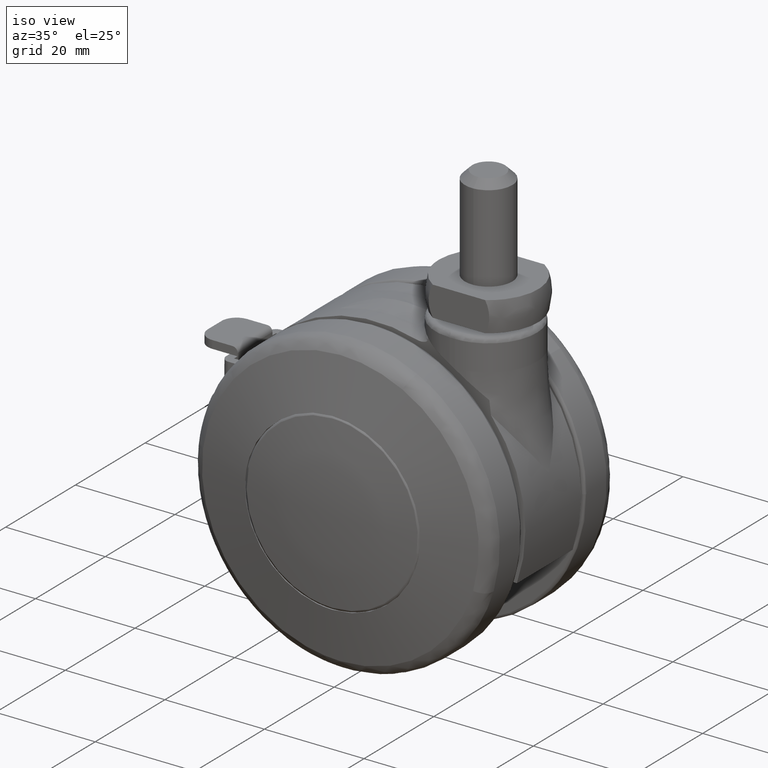
[diagram: clean part render]
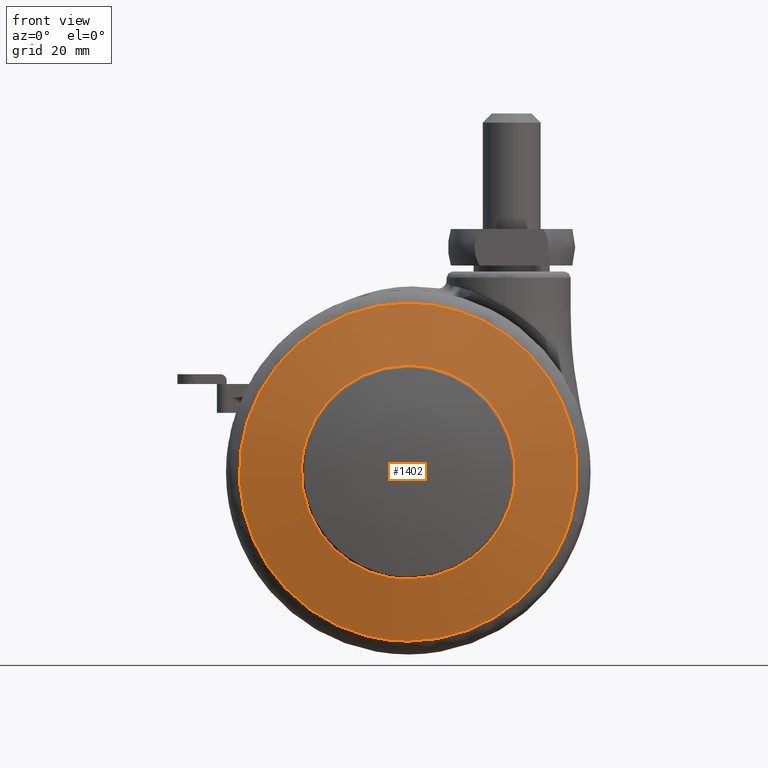
[diagram: tour spotlight — one face highlighted and labeled with its STEP entity id]
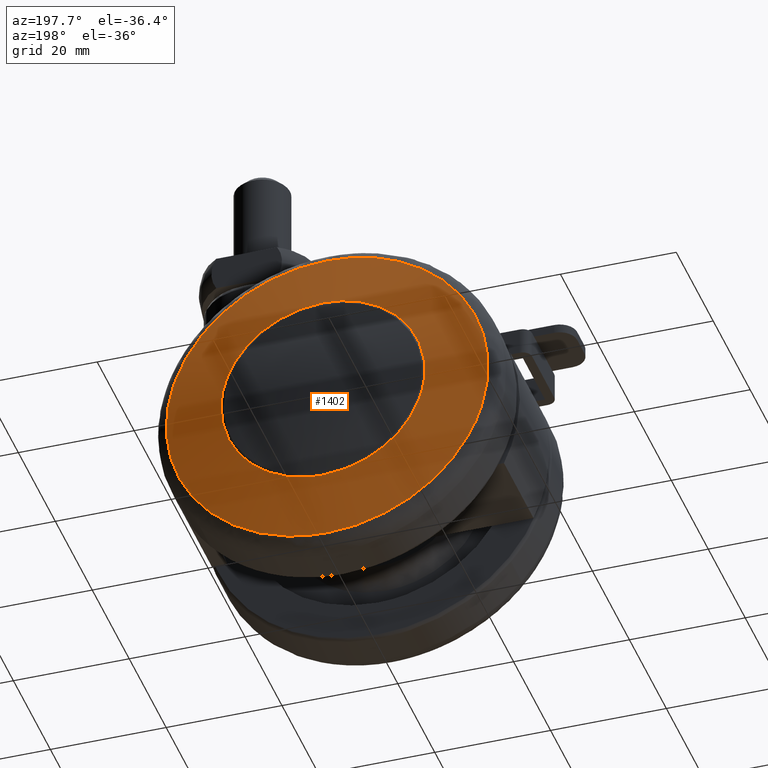
[diagram: tour spotlight — one face highlighted and labeled with its STEP entity id]
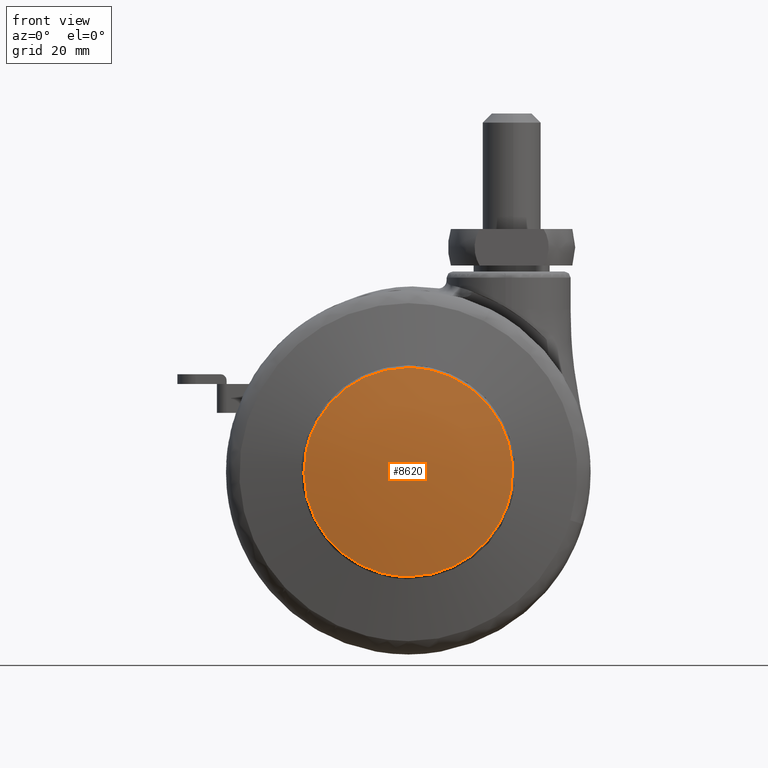
[diagram: tour spotlight — one face highlighted and labeled with its STEP entity id]
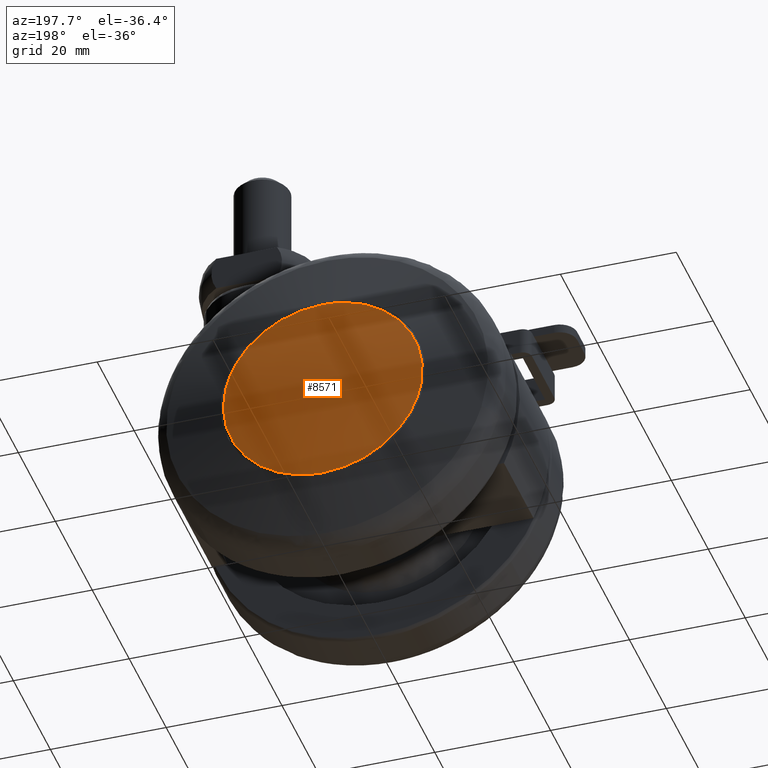
[diagram: tour spotlight — one face highlighted and labeled with its STEP entity id]
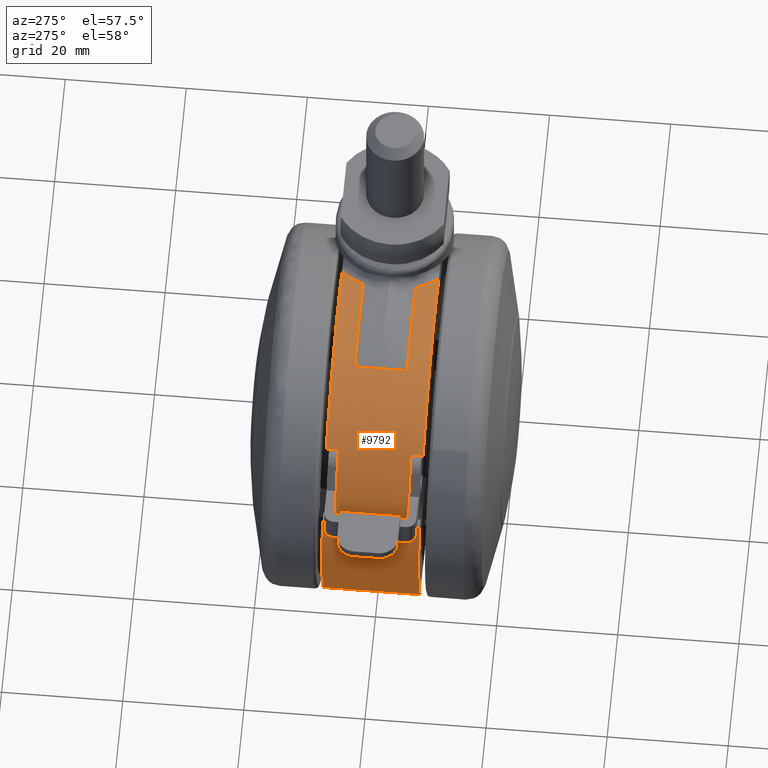
[diagram: tour spotlight — one face highlighted and labeled with its STEP entity id]
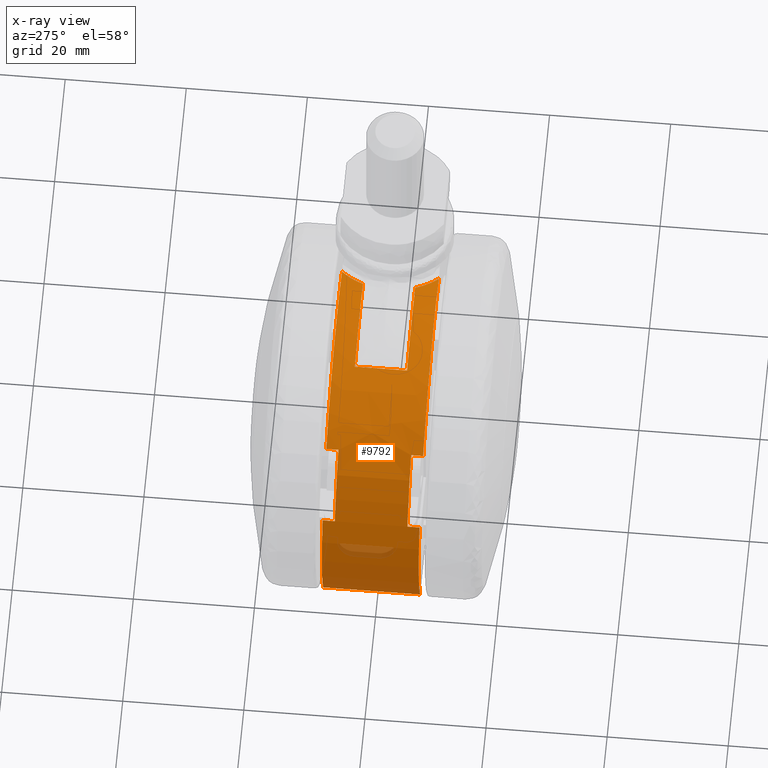
[diagram: x-ray of the same camera — body ghosted, this tour face saturated]
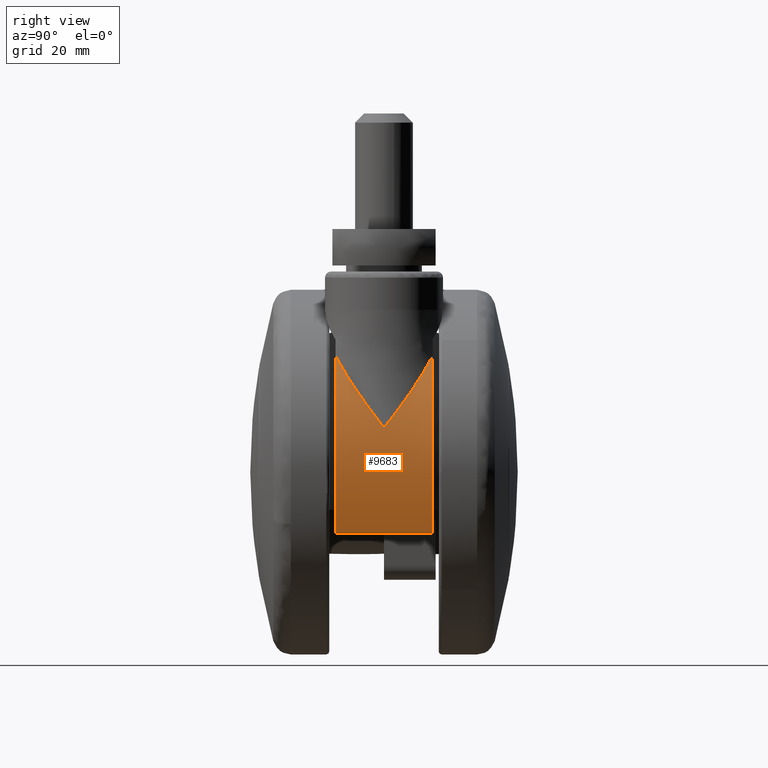
[diagram: tour spotlight — one face highlighted and labeled with its STEP entity id]
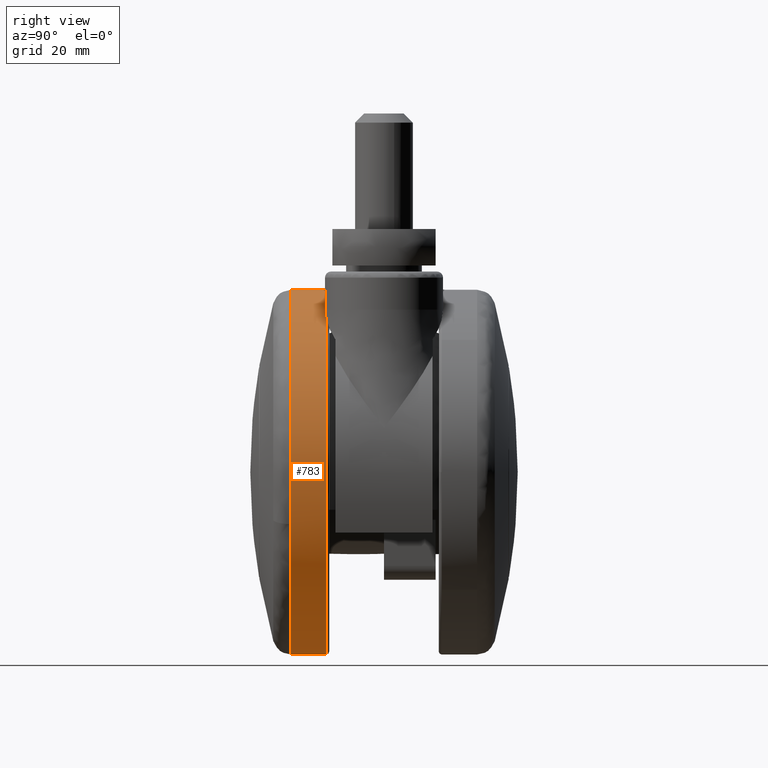
[diagram: tour spotlight — one face highlighted and labeled with its STEP entity id]
A machine part: a face-by-face anatomy tour. The part has 194 B-rep faces; the first image is the clean iso view, then the 7 largest visible faces are spotlighted one at a time (largest first), each with its STEP entity span.

Face 1 — front view, entity #1402. In plain terms, the highlighted face is a freeform B-spline surface patch.
Definition (entity closure, byte-faithful):
#66=CARTESIAN_POINT('',(17.476969005806961,-20.499999995122391,-2.077391241421224));
#67=VERTEX_POINT('',#66);
#68=CARTESIAN_POINT('',(0.0,-20.499999995122000,17.600000000000001));
#69=VERTEX_POINT('',#68);
#70=CARTESIAN_POINT('',(17.476969005806957,-20.499999995122394,-2.077391241421224));
#71=CARTESIAN_POINT('',(17.600000000000001,-20.499999995121996,-1.042338801934813));
#72=CARTESIAN_POINT('',(17.600000000000001,-20.499999995122000,-1.653219E-015));
#73=CARTESIAN_POINT('',(17.600000000000005,-20.499999995122003,17.600000000000005));
#74=CARTESIAN_POINT('',(0.0,-20.499999995122000,17.600000000000001));
#82=(BOUNDED_CURVE()B_SPLINE_CURVE(2,(#70,#71,#72,#73,#74),.UNSPECIFIED.,.F.,.U.)B_SPLINE_CURVE_WITH_KNOTS((3,2,3),(0.229562582676436,0.250000000000000,0.500000000000000),.UNSPECIFIED.)CURVE()GEOMETRIC_REPRESENTATION_ITEM()RATIONAL_B_SPLINE_CURVE((0.956026968147617,0.976056076223470,1.0,0.707106781186548,1.0))REPRESENTATION_ITEM(''));
#83=EDGE_CURVE('',#67,#69,#82,.T.);
#85=CARTESIAN_POINT('',(-17.567173857446960,-20.499999995121080,1.074431320142071));
#86=VERTEX_POINT('',#85);
#87=CARTESIAN_POINT('',(0.0,-20.499999995122000,17.600000000000001));
#88=CARTESIAN_POINT('',(-16.556448471757996,-20.499999995122007,17.599999999999998));
#89=CARTESIAN_POINT('',(-17.567173857446956,-20.499999995121080,1.074431320142071));
#97=(BOUNDED_CURVE()B_SPLINE_CURVE(2,(#87,#88,#89),.UNSPECIFIED.,.F.,.U.)B_SPLINE_CURVE_WITH_KNOTS((3,3),(0.500000000000000,0.739333187911695),.UNSPECIFIED.)CURVE()GEOMETRIC_REPRESENTATION_ITEM()RATIONAL_B_SPLINE_CURVE((1.0,0.719603728894635,0.976072525326862))REPRESENTATION_ITEM(''));
#98=EDGE_CURVE('',#69,#86,#97,.T.);
#165=CARTESIAN_POINT('',(0.0,-20.499999995122000,-17.600000000000001));
#166=VERTEX_POINT('',#165);
#167=CARTESIAN_POINT('',(0.0,-20.499999995122000,-17.600000000000001));
#168=CARTESIAN_POINT('',(15.631881824597166,-20.499999995122007,-17.600000000000005));
#169=CARTESIAN_POINT('',(17.476969005806957,-20.499999995122394,-2.077391241421224));
#177=(BOUNDED_CURVE()B_SPLINE_CURVE(2,(#167,#168,#169),.UNSPECIFIED.,.F.,.U.)B_SPLINE_CURVE_WITH_KNOTS((3,3),(0.0,0.229562582676436),.UNSPECIFIED.)CURVE()GEOMETRIC_REPRESENTATION_ITEM()RATIONAL_B_SPLINE_CURVE((1.0,0.731050704963077,0.956026968147617))REPRESENTATION_ITEM(''));
#178=EDGE_CURVE('',#166,#67,#177,.T.);
#212=CARTESIAN_POINT('',(-17.567173857446956,-20.499999995121080,1.074431320142071));
#213=CARTESIAN_POINT('',(-17.600000000000005,-20.499999995122007,0.537717114009837));
#214=CARTESIAN_POINT('',(-17.600000000000001,-20.499999995122000,-1.653219E-015));
#215=CARTESIAN_POINT('',(-17.600000000000005,-20.499999995122003,-17.600000000000005));
#216=CARTESIAN_POINT('',(0.0,-20.499999995122000,-17.600000000000001));
#224=(BOUNDED_CURVE()B_SPLINE_CURVE(2,(#212,#213,#214,#215,#216),.UNSPECIFIED.,.F.,.U.)B_SPLINE_CURVE_WITH_KNOTS((3,2,3),(0.739333187911695,0.750000000000000,1.0),.UNSPECIFIED.)CURVE()GEOMETRIC_REPRESENTATION_ITEM()RATIONAL_B_SPLINE_CURVE((0.976072525326862,0.987503052291913,1.0,0.707106781186548,1.0))REPRESENTATION_ITEM(''));
#225=EDGE_CURVE('',#86,#166,#224,.T.);
#1245=CARTESIAN_POINT('',(12.453677528621601,-18.215151406440601,24.856679947328331));
#1246=VERTEX_POINT('',#1245);
#1247=CARTESIAN_POINT('',(0.0,-18.215151576069498,27.801953607345450));
#1248=VERTEX_POINT('',#1247);
#1249=CARTESIAN_POINT('',(12.453677528621608,-18.215151406440590,24.856679947328338));
#1250=CARTESIAN_POINT('',(6.575114882502558,-18.215151576069498,27.801953607345453));
#1251=CARTESIAN_POINT('',(0.0,-18.215151576069498,27.801953607345450));
#1259=(BOUNDED_CURVE()B_SPLINE_CURVE(2,(#1249,#1250,#1251),.UNSPECIFIED.,.F.,.U.)B_SPLINE_CURVE_WITH_KNOTS((3,3),(0.423845389613726,0.500000000000000),.UNSPECIFIED.)CURVE()GEOMETRIC_REPRESENTATION_ITEM()RATIONAL_B_SPLINE_CURVE((0.875915174756379,0.910779324145920,1.0))REPRESENTATION_ITEM(''));
#1260=EDGE_CURVE('',#1246,#1248,#1259,.T.);
#1280=CARTESIAN_POINT('',(26.648778269221740,-18.215151406249429,-7.924092300508762));
#1281=VERTEX_POINT('',#1280);
#1295=CARTESIAN_POINT('',(0.0,-18.215151576069498,-27.801953607345450));
#1296=VERTEX_POINT('',#1295);
#1297=CARTESIAN_POINT('',(0.0,-18.215151576069498,-27.801953607345450));
#1298=CARTESIAN_POINT('',(20.738038010622862,-18.215151576069495,-27.801953607345443));
#1299=CARTESIAN_POINT('',(26.648778269221747,-18.215151406249433,-7.924092300508762));
#1307=(BOUNDED_CURVE()B_SPLINE_CURVE(2,(#1297,#1298,#1299),.UNSPECIFIED.,.F.,.U.)B_SPLINE_CURVE_WITH_KNOTS((3,3),(0.0,0.201473337933165),.UNSPECIFIED.)CURVE()GEOMETRIC_REPRESENTATION_ITEM()RATIONAL_B_SPLINE_CURVE((1.0,0.763959302190659,0.908365862587090))REPRESENTATION_ITEM(''));
#1308=EDGE_CURVE('',#1296,#1281,#1307,.T.);
#1310=CARTESIAN_POINT('',(0.0,-18.215151576069498,27.801953607345450));
#1311=CARTESIAN_POINT('',(-27.801953607345439,-18.215151576069495,27.801953607345439));
#1312=CARTESIAN_POINT('',(-27.801953607345450,-18.215151576069498,-1.653219E-015));
#1313=CARTESIAN_POINT('',(-27.801953607345439,-18.215151576069495,-27.801953607345439));
#1314=CARTESIAN_POINT('',(0.0,-18.215151576069498,-27.801953607345450));
#1322=(BOUNDED_CURVE()B_SPLINE_CURVE(2,(#1310,#1311,#1312,#1313,#1314),.UNSPECIFIED.,.F.,.U.)B_SPLINE_CURVE_WITH_KNOTS((3,2,3),(0.500000000000000,0.750000000000000,1.0),.UNSPECIFIED.)CURVE()GEOMETRIC_REPRESENTATION_ITEM()RATIONAL_B_SPLINE_CURVE((1.0,0.707106781186548,1.0,0.707106781186548,1.0))REPRESENTATION_ITEM(''));
#1323=EDGE_CURVE('',#1248,#1296,#1322,.T.);
#1345=CARTESIAN_POINT('',(26.648778269221747,-18.215151406249436,-7.924092300508762));
#1346=CARTESIAN_POINT('',(27.801953607345450,-18.215151576069502,-4.045955657594026));
#1347=CARTESIAN_POINT('',(27.801953607345450,-18.215151576069498,-1.653219E-015));
#1348=CARTESIAN_POINT('',(27.801953607345446,-18.215151576069495,17.166896753659067));
#1349=CARTESIAN_POINT('',(12.453677528621604,-18.215151406440597,24.856679947328331));
#1357=(BOUNDED_CURVE()B_SPLINE_CURVE(2,(#1345,#1346,#1347,#1348,#1349),.UNSPECIFIED.,.F.,.U.)B_SPLINE_CURVE_WITH_KNOTS((3,2,3),(0.201473337933165,0.250000000000000,0.423845389613726),.UNSPECIFIED.)CURVE()GEOMETRIC_REPRESENTATION_ITEM()RATIONAL_B_SPLINE_CURVE((0.908365862587090,0.943147478995888,1.0,0.796327457040628,0.875915174756380))REPRESENTATION_ITEM(''));
#1358=EDGE_CURVE('',#1281,#1246,#1357,.T.);
#1366=CARTESIAN_POINT('',(-29.809327307294737,-13.072937862196540,-29.809394484519281));
#1367=CARTESIAN_POINT('',(-15.231509735195463,-17.438577366083301,-30.463088120752563));
#1368=CARTESIAN_POINT('',(15.230824602223839,-17.438577366083301,-30.463088120752563));
#1369=CARTESIAN_POINT('',(29.808043987401366,-13.073322170776407,-29.809452029369886));
#1370=CARTESIAN_POINT('',(-30.463022481277982,-17.438597474091434,-15.231545565823192));
#1371=CARTESIAN_POINT('',(-15.573013680460109,-21.999999999999972,-15.573048775241899));
#1372=CARTESIAN_POINT('',(15.572313186200150,-21.999999999999972,-15.573048775241899));
#1373=CARTESIAN_POINT('',(30.461712308713469,-17.438998822670261,-15.231575613999606));
#1374=CARTESIAN_POINT('',(-30.463022481277982,-17.438597474091434,15.231547623658559));
#1375=CARTESIAN_POINT('',(-15.573013680460109,-21.999999999999972,15.573050879215550));
#1376=CARTESIAN_POINT('',(15.572313186200160,-21.999999999999972,15.573050879215540));
#1377=CARTESIAN_POINT('',(30.461712308713469,-17.438998822670261,15.231577671839021));
#1378=CARTESIAN_POINT('',(-29.809327134452012,-13.072936707877846,29.809398339030164));
#1379=CARTESIAN_POINT('',(-15.231509644942253,-17.438576160583139,30.463092055916043));
#1380=CARTESIAN_POINT('',(15.230824511974690,-17.438576160583139,30.463092055916032));
#1381=CARTESIAN_POINT('',(29.808043814565718,-13.073321016453241,29.809455883887832));
#1389=(BOUNDED_SURFACE()B_SPLINE_SURFACE(2,2,((#1366,#1370,#1374,#1378),(#1367,#1371,#1375,#1379),(#1368,#1372,#1376,#1380),(#1369,#1373,#1377,#1381)),.UNSPECIFIED.,.F.,.F.,.U.)B_SPLINE_SURFACE_WITH_KNOTS((3,1,3),(3,1,3),(22.879937403011319,52.980574481842218,83.079857595157620),(22.879869569301601,52.980574481842218,83.081283461093903),.UNSPECIFIED.)GEOMETRIC_REPRESENTATION_ITEM()RATIONAL_B_SPLINE_SURFACE(((1.044841671193915,1.022420785070228,1.022420785070228,1.044841677252196),(1.022420886123687,1.0,1.0,1.022420892181968),(1.022420886123687,1.0,1.0,1.022420892181968),(1.044839654207564,1.022418768083877,1.022418768083877,1.044839660265846)))REPRESENTATION_ITEM('')SURFACE());
#1390=ORIENTED_EDGE('',*,*,#1308,.T.);
#1391=ORIENTED_EDGE('',*,*,#1358,.T.);
#1392=ORIENTED_EDGE('',*,*,#1260,.T.);
#1393=ORIENTED_EDGE('',*,*,#1323,.T.);
#1394=EDGE_LOOP('',(#1390,#1391,#1392,#1393));
#1395=FACE_OUTER_BOUND('',#1394,.T.);
#1396=ORIENTED_EDGE('',*,*,#98,.F.);
#1397=ORIENTED_EDGE('',*,*,#83,.F.);
#1398=ORIENTED_EDGE('',*,*,#178,.F.);
#1399=ORIENTED_EDGE('',*,*,#225,.F.);
#1400=EDGE_LOOP('',(#1396,#1397,#1398,#1399));
#1401=FACE_BOUND('',#1400,.T.);
#1402=ADVANCED_FACE('',(#1395,#1401),#1389,.T.);

Face 2 — auxiliary view, entity #1402. In plain terms, the highlighted face is a freeform B-spline surface patch.
Definition (entity closure, byte-faithful):
#66=CARTESIAN_POINT('',(17.476969005806961,-20.499999995122391,-2.077391241421224));
#67=VERTEX_POINT('',#66);
#68=CARTESIAN_POINT('',(0.0,-20.499999995122000,17.600000000000001));
#69=VERTEX_POINT('',#68);
#70=CARTESIAN_POINT('',(17.476969005806957,-20.499999995122394,-2.077391241421224));
#71=CARTESIAN_POINT('',(17.600000000000001,-20.499999995121996,-1.042338801934813));
#72=CARTESIAN_POINT('',(17.600000000000001,-20.499999995122000,-1.653219E-015));
#73=CARTESIAN_POINT('',(17.600000000000005,-20.499999995122003,17.600000000000005));
#74=CARTESIAN_POINT('',(0.0,-20.499999995122000,17.600000000000001));
#82=(BOUNDED_CURVE()B_SPLINE_CURVE(2,(#70,#71,#72,#73,#74),.UNSPECIFIED.,.F.,.U.)B_SPLINE_CURVE_WITH_KNOTS((3,2,3),(0.229562582676436,0.250000000000000,0.500000000000000),.UNSPECIFIED.)CURVE()GEOMETRIC_REPRESENTATION_ITEM()RATIONAL_B_SPLINE_CURVE((0.956026968147617,0.976056076223470,1.0,0.707106781186548,1.0))REPRESENTATION_ITEM(''));
#83=EDGE_CURVE('',#67,#69,#82,.T.);
#85=CARTESIAN_POINT('',(-17.567173857446960,-20.499999995121080,1.074431320142071));
#86=VERTEX_POINT('',#85);
#87=CARTESIAN_POINT('',(0.0,-20.499999995122000,17.600000000000001));
#88=CARTESIAN_POINT('',(-16.556448471757996,-20.499999995122007,17.599999999999998));
#89=CARTESIAN_POINT('',(-17.567173857446956,-20.499999995121080,1.074431320142071));
#97=(BOUNDED_CURVE()B_SPLINE_CURVE(2,(#87,#88,#89),.UNSPECIFIED.,.F.,.U.)B_SPLINE_CURVE_WITH_KNOTS((3,3),(0.500000000000000,0.739333187911695),.UNSPECIFIED.)CURVE()GEOMETRIC_REPRESENTATION_ITEM()RATIONAL_B_SPLINE_CURVE((1.0,0.719603728894635,0.976072525326862))REPRESENTATION_ITEM(''));
#98=EDGE_CURVE('',#69,#86,#97,.T.);
#165=CARTESIAN_POINT('',(0.0,-20.499999995122000,-17.600000000000001));
#166=VERTEX_POINT('',#165);
#167=CARTESIAN_POINT('',(0.0,-20.499999995122000,-17.600000000000001));
#168=CARTESIAN_POINT('',(15.631881824597166,-20.499999995122007,-17.600000000000005));
#169=CARTESIAN_POINT('',(17.476969005806957,-20.499999995122394,-2.077391241421224));
#177=(BOUNDED_CURVE()B_SPLINE_CURVE(2,(#167,#168,#169),.UNSPECIFIED.,.F.,.U.)B_SPLINE_CURVE_WITH_KNOTS((3,3),(0.0,0.229562582676436),.UNSPECIFIED.)CURVE()GEOMETRIC_REPRESENTATION_ITEM()RATIONAL_B_SPLINE_CURVE((1.0,0.731050704963077,0.956026968147617))REPRESENTATION_ITEM(''));
#178=EDGE_CURVE('',#166,#67,#177,.T.);
#212=CARTESIAN_POINT('',(-17.567173857446956,-20.499999995121080,1.074431320142071));
#213=CARTESIAN_POINT('',(-17.600000000000005,-20.499999995122007,0.537717114009837));
#214=CARTESIAN_POINT('',(-17.600000000000001,-20.499999995122000,-1.653219E-015));
#215=CARTESIAN_POINT('',(-17.600000000000005,-20.499999995122003,-17.600000000000005));
#216=CARTESIAN_POINT('',(0.0,-20.499999995122000,-17.600000000000001));
#224=(BOUNDED_CURVE()B_SPLINE_CURVE(2,(#212,#213,#214,#215,#216),.UNSPECIFIED.,.F.,.U.)B_SPLINE_CURVE_WITH_KNOTS((3,2,3),(0.739333187911695,0.750000000000000,1.0),.UNSPECIFIED.)CURVE()GEOMETRIC_REPRESENTATION_ITEM()RATIONAL_B_SPLINE_CURVE((0.976072525326862,0.987503052291913,1.0,0.707106781186548,1.0))REPRESENTATION_ITEM(''));
#225=EDGE_CURVE('',#86,#166,#224,.T.);
#1245=CARTESIAN_POINT('',(12.453677528621601,-18.215151406440601,24.856679947328331));
#1246=VERTEX_POINT('',#1245);
#1247=CARTESIAN_POINT('',(0.0,-18.215151576069498,27.801953607345450));
#1248=VERTEX_POINT('',#1247);
#1249=CARTESIAN_POINT('',(12.453677528621608,-18.215151406440590,24.856679947328338));
#1250=CARTESIAN_POINT('',(6.575114882502558,-18.215151576069498,27.801953607345453));
#1251=CARTESIAN_POINT('',(0.0,-18.215151576069498,27.801953607345450));
#1259=(BOUNDED_CURVE()B_SPLINE_CURVE(2,(#1249,#1250,#1251),.UNSPECIFIED.,.F.,.U.)B_SPLINE_CURVE_WITH_KNOTS((3,3),(0.423845389613726,0.500000000000000),.UNSPECIFIED.)CURVE()GEOMETRIC_REPRESENTATION_ITEM()RATIONAL_B_SPLINE_CURVE((0.875915174756379,0.910779324145920,1.0))REPRESENTATION_ITEM(''));
#1260=EDGE_CURVE('',#1246,#1248,#1259,.T.);
#1280=CARTESIAN_POINT('',(26.648778269221740,-18.215151406249429,-7.924092300508762));
#1281=VERTEX_POINT('',#1280);
#1295=CARTESIAN_POINT('',(0.0,-18.215151576069498,-27.801953607345450));
#1296=VERTEX_POINT('',#1295);
#1297=CARTESIAN_POINT('',(0.0,-18.215151576069498,-27.801953607345450));
#1298=CARTESIAN_POINT('',(20.738038010622862,-18.215151576069495,-27.801953607345443));
#1299=CARTESIAN_POINT('',(26.648778269221747,-18.215151406249433,-7.924092300508762));
#1307=(BOUNDED_CURVE()B_SPLINE_CURVE(2,(#1297,#1298,#1299),.UNSPECIFIED.,.F.,.U.)B_SPLINE_CURVE_WITH_KNOTS((3,3),(0.0,0.201473337933165),.UNSPECIFIED.)CURVE()GEOMETRIC_REPRESENTATION_ITEM()RATIONAL_B_SPLINE_CURVE((1.0,0.763959302190659,0.908365862587090))REPRESENTATION_ITEM(''));
#1308=EDGE_CURVE('',#1296,#1281,#1307,.T.);
#1310=CARTESIAN_POINT('',(0.0,-18.215151576069498,27.801953607345450));
#1311=CARTESIAN_POINT('',(-27.801953607345439,-18.215151576069495,27.801953607345439));
#1312=CARTESIAN_POINT('',(-27.801953607345450,-18.215151576069498,-1.653219E-015));
#1313=CARTESIAN_POINT('',(-27.801953607345439,-18.215151576069495,-27.801953607345439));
#1314=CARTESIAN_POINT('',(0.0,-18.215151576069498,-27.801953607345450));
#1322=(BOUNDED_CURVE()B_SPLINE_CURVE(2,(#1310,#1311,#1312,#1313,#1314),.UNSPECIFIED.,.F.,.U.)B_SPLINE_CURVE_WITH_KNOTS((3,2,3),(0.500000000000000,0.750000000000000,1.0),.UNSPECIFIED.)CURVE()GEOMETRIC_REPRESENTATION_ITEM()RATIONAL_B_SPLINE_CURVE((1.0,0.707106781186548,1.0,0.707106781186548,1.0))REPRESENTATION_ITEM(''));
#1323=EDGE_CURVE('',#1248,#1296,#1322,.T.);
#1345=CARTESIAN_POINT('',(26.648778269221747,-18.215151406249436,-7.924092300508762));
#1346=CARTESIAN_POINT('',(27.801953607345450,-18.215151576069502,-4.045955657594026));
#1347=CARTESIAN_POINT('',(27.801953607345450,-18.215151576069498,-1.653219E-015));
#1348=CARTESIAN_POINT('',(27.801953607345446,-18.215151576069495,17.166896753659067));
#1349=CARTESIAN_POINT('',(12.453677528621604,-18.215151406440597,24.856679947328331));
#1357=(BOUNDED_CURVE()B_SPLINE_CURVE(2,(#1345,#1346,#1347,#1348,#1349),.UNSPECIFIED.,.F.,.U.)B_SPLINE_CURVE_WITH_KNOTS((3,2,3),(0.201473337933165,0.250000000000000,0.423845389613726),.UNSPECIFIED.)CURVE()GEOMETRIC_REPRESENTATION_ITEM()RATIONAL_B_SPLINE_CURVE((0.908365862587090,0.943147478995888,1.0,0.796327457040628,0.875915174756380))REPRESENTATION_ITEM(''));
#1358=EDGE_CURVE('',#1281,#1246,#1357,.T.);
#1366=CARTESIAN_POINT('',(-29.809327307294737,-13.072937862196540,-29.809394484519281));
#1367=CARTESIAN_POINT('',(-15.231509735195463,-17.438577366083301,-30.463088120752563));
#1368=CARTESIAN_POINT('',(15.230824602223839,-17.438577366083301,-30.463088120752563));
#1369=CARTESIAN_POINT('',(29.808043987401366,-13.073322170776407,-29.809452029369886));
#1370=CARTESIAN_POINT('',(-30.463022481277982,-17.438597474091434,-15.231545565823192));
#1371=CARTESIAN_POINT('',(-15.573013680460109,-21.999999999999972,-15.573048775241899));
#1372=CARTESIAN_POINT('',(15.572313186200150,-21.999999999999972,-15.573048775241899));
#1373=CARTESIAN_POINT('',(30.461712308713469,-17.438998822670261,-15.231575613999606));
#1374=CARTESIAN_POINT('',(-30.463022481277982,-17.438597474091434,15.231547623658559));
#1375=CARTESIAN_POINT('',(-15.573013680460109,-21.999999999999972,15.573050879215550));
#1376=CARTESIAN_POINT('',(15.572313186200160,-21.999999999999972,15.573050879215540));
#1377=CARTESIAN_POINT('',(30.461712308713469,-17.438998822670261,15.231577671839021));
#1378=CARTESIAN_POINT('',(-29.809327134452012,-13.072936707877846,29.809398339030164));
#1379=CARTESIAN_POINT('',(-15.231509644942253,-17.438576160583139,30.463092055916043));
#1380=CARTESIAN_POINT('',(15.230824511974690,-17.438576160583139,30.463092055916032));
#1381=CARTESIAN_POINT('',(29.808043814565718,-13.073321016453241,29.809455883887832));
#1389=(BOUNDED_SURFACE()B_SPLINE_SURFACE(2,2,((#1366,#1370,#1374,#1378),(#1367,#1371,#1375,#1379),(#1368,#1372,#1376,#1380),(#1369,#1373,#1377,#1381)),.UNSPECIFIED.,.F.,.F.,.U.)B_SPLINE_SURFACE_WITH_KNOTS((3,1,3),(3,1,3),(22.879937403011319,52.980574481842218,83.079857595157620),(22.879869569301601,52.980574481842218,83.081283461093903),.UNSPECIFIED.)GEOMETRIC_REPRESENTATION_ITEM()RATIONAL_B_SPLINE_SURFACE(((1.044841671193915,1.022420785070228,1.022420785070228,1.044841677252196),(1.022420886123687,1.0,1.0,1.022420892181968),(1.022420886123687,1.0,1.0,1.022420892181968),(1.044839654207564,1.022418768083877,1.022418768083877,1.044839660265846)))REPRESENTATION_ITEM('')SURFACE());
#1390=ORIENTED_EDGE('',*,*,#1308,.T.);
#1391=ORIENTED_EDGE('',*,*,#1358,.T.);
#1392=ORIENTED_EDGE('',*,*,#1260,.T.);
#1393=ORIENTED_EDGE('',*,*,#1323,.T.);
#1394=EDGE_LOOP('',(#1390,#1391,#1392,#1393));
#1395=FACE_OUTER_BOUND('',#1394,.T.);
#1396=ORIENTED_EDGE('',*,*,#98,.F.);
#1397=ORIENTED_EDGE('',*,*,#83,.F.);
#1398=ORIENTED_EDGE('',*,*,#178,.F.);
#1399=ORIENTED_EDGE('',*,*,#225,.F.);
#1400=EDGE_LOOP('',(#1396,#1397,#1398,#1399));
#1401=FACE_BOUND('',#1400,.T.);
#1402=ADVANCED_FACE('',(#1395,#1401),#1389,.T.);

Face 3 — front view, entity #8620. In plain terms, the highlighted face is a freeform B-spline surface patch.
Definition (entity closure, byte-faithful):
#6033=CARTESIAN_POINT('',(-16.766259899959461,-20.570793000496540,3.759584991742437));
#6034=VERTEX_POINT('',#6033);
#6048=CARTESIAN_POINT('',(0.0,-20.570793001334849,17.182606035498409));
#6049=VERTEX_POINT('',#6048);
#6050=CARTESIAN_POINT('',(0.0,-20.570793001334849,17.182606035498409));
#6051=CARTESIAN_POINT('',(-13.756346606179585,-20.570793001334852,17.182606035498406));
#6052=CARTESIAN_POINT('',(-16.766259899959458,-20.570793000496547,3.759584991742436));
#6060=(BOUNDED_CURVE()B_SPLINE_CURVE(2,(#6050,#6051,#6052),.UNSPECIFIED.,.F.,.U.)B_SPLINE_CURVE_WITH_KNOTS((3,3),(0.0,0.212563823257845),.UNSPECIFIED.)CURVE()GEOMETRIC_REPRESENTATION_ITEM()RATIONAL_B_SPLINE_CURVE((1.0,0.750965990410864,0.925416950417708))REPRESENTATION_ITEM(''));
#6061=EDGE_CURVE('',#6049,#6034,#6060,.T.);
#6063=CARTESIAN_POINT('',(16.953835866887019,-20.570793000179261,-2.794530337439335));
#6064=VERTEX_POINT('',#6063);
#6065=CARTESIAN_POINT('',(16.953835866887015,-20.570793000179265,-2.794530337439335));
#6066=CARTESIAN_POINT('',(17.182606035498399,-20.570793001334849,-1.406629137589345));
#6067=CARTESIAN_POINT('',(17.182606035498399,-20.570793001334849,6.674309E-015));
#6068=CARTESIAN_POINT('',(17.182606035498406,-20.570793001334845,17.182606035498406));
#6069=CARTESIAN_POINT('',(0.0,-20.570793001334849,17.182606035498409));
#6077=(BOUNDED_CURVE()B_SPLINE_CURVE(2,(#6065,#6066,#6067,#6068,#6069),.UNSPECIFIED.,.F.,.U.)B_SPLINE_CURVE_WITH_KNOTS((3,2,3),(0.722006108798636,0.750000000000000,1.0),.UNSPECIFIED.)CURVE()GEOMETRIC_REPRESENTATION_ITEM()RATIONAL_B_SPLINE_CURVE((0.941751131922257,0.967203116395675,1.0,0.707106781186547,1.0))REPRESENTATION_ITEM(''));
#6078=EDGE_CURVE('',#6064,#6049,#6077,.T.);
#6131=CARTESIAN_POINT('',(0.0,-20.570793001334849,-17.182606035498392));
#6132=VERTEX_POINT('',#6131);
#6133=CARTESIAN_POINT('',(0.0,-20.570793001334849,-17.182606035498392));
#6134=CARTESIAN_POINT('',(14.582224246338869,-20.570793001334856,-17.182606035498399));
#6135=CARTESIAN_POINT('',(16.953835866887022,-20.570793000179261,-2.794530337439335));
#6143=(BOUNDED_CURVE()B_SPLINE_CURVE(2,(#6133,#6134,#6135),.UNSPECIFIED.,.F.,.U.)B_SPLINE_CURVE_WITH_KNOTS((3,3),(0.500000000000000,0.722006108798636),.UNSPECIFIED.)CURVE()GEOMETRIC_REPRESENTATION_ITEM()RATIONAL_B_SPLINE_CURVE((1.0,0.739903664790872,0.941751131922257))REPRESENTATION_ITEM(''));
#6144=EDGE_CURVE('',#6132,#6064,#6143,.T.);
#6146=CARTESIAN_POINT('',(-16.766259899959454,-20.570793000496543,3.759584991742437));
#6147=CARTESIAN_POINT('',(-17.182606035498399,-20.570793001334852,1.902846118652706));
#6148=CARTESIAN_POINT('',(-17.182606035498399,-20.570793001334849,6.674309E-015));
#6149=CARTESIAN_POINT('',(-17.182606035498406,-20.570793001334845,-17.182606035498392));
#6150=CARTESIAN_POINT('',(0.0,-20.570793001334849,-17.182606035498392));
#6158=(BOUNDED_CURVE()B_SPLINE_CURVE(2,(#6146,#6147,#6148,#6149,#6150),.UNSPECIFIED.,.F.,.U.)B_SPLINE_CURVE_WITH_KNOTS((3,2,3),(0.212563823257845,0.250000000000000,0.500000000000000),.UNSPECIFIED.)CURVE()GEOMETRIC_REPRESENTATION_ITEM()RATIONAL_B_SPLINE_CURVE((0.925416950417708,0.956140790775683,1.0,0.707106781186547,1.0))REPRESENTATION_ITEM(''));
#6159=EDGE_CURVE('',#6034,#6132,#6158,.T.);
#8590=CARTESIAN_POINT('',(-18.713619106772448,-18.575895048365542,-18.716640196103590));
#8591=CARTESIAN_POINT('',(-9.434449688083760,-20.273462740208728,-18.871945533635511));
#8592=CARTESIAN_POINT('',(9.435447419599901,-20.273462740208728,-18.871945533635511));
#8593=CARTESIAN_POINT('',(18.715565570409172,-18.575538935519972,-18.716607616415633));
#8594=CARTESIAN_POINT('',(-18.868949932673722,-20.274015438191032,-9.435998049151731));
#8595=CARTESIAN_POINT('',(-9.513414777991263,-21.999999999999972,-9.514950604691812));
#8596=CARTESIAN_POINT('',(9.514420860387581,-21.999999999999972,-9.514950604691812));
#8597=CARTESIAN_POINT('',(18.870912280114648,-20.273653389045986,-9.435981487760698));
#8598=CARTESIAN_POINT('',(-18.868949932673722,-20.274015438191032,9.435997649286469));
#8599=CARTESIAN_POINT('',(-9.513414777991263,-21.999999999999972,9.514950201480810));
#8600=CARTESIAN_POINT('',(9.514420860387581,-21.999999999999972,9.514950201480810));
#8601=CARTESIAN_POINT('',(18.870912280114648,-20.273653389045986,9.435981087896137));
#8602=CARTESIAN_POINT('',(-18.713619119828859,-18.575895191101836,18.716639416014996));
#8603=CARTESIAN_POINT('',(-9.434449694720742,-20.273462885323603,18.871944747183200));
#8604=CARTESIAN_POINT('',(9.435447426237587,-20.273462885323603,18.871944747183200));
#8605=CARTESIAN_POINT('',(18.715565583466915,-18.575539078255762,18.716606836328378));
#8613=(BOUNDED_SURFACE()B_SPLINE_SURFACE(2,2,((#8590,#8594,#8598,#8602),(#8591,#8595,#8599,#8603),(#8592,#8596,#8600,#8604),(#8593,#8597,#8601,#8605)),.UNSPECIFIED.,.F.,.F.,.U.)B_SPLINE_SURFACE_WITH_KNOTS((3,1,3),(3,1,3),(29.893229868030549,48.390443240193122,66.889612768077853),(29.890243714809419,48.390443240193122,66.890641981601718),.UNSPECIFIED.)GEOMETRIC_REPRESENTATION_ITEM()RATIONAL_B_SPLINE_SURFACE(((1.016737032394589,1.008367165309787,1.008367165309787,1.016737031685216),(1.008369867084801,1.0,1.0,1.008369866375429),(1.008369867084801,1.0,1.0,1.008369866375429),(1.016738802211851,1.008368935127050,1.008368935127050,1.016738801502478)))REPRESENTATION_ITEM('')SURFACE());
#8614=ORIENTED_EDGE('',*,*,#6061,.T.);
#8615=ORIENTED_EDGE('',*,*,#6159,.T.);
#8616=ORIENTED_EDGE('',*,*,#6144,.T.);
#8617=ORIENTED_EDGE('',*,*,#6078,.T.);
#8618=EDGE_LOOP('',(#8614,#8615,#8616,#8617));
#8619=FACE_OUTER_BOUND('',#8618,.T.);
#8620=ADVANCED_FACE('',(#8619),#8613,.T.);

Face 4 — auxiliary view, entity #8571. In plain terms, the highlighted face is a freeform B-spline surface patch.
Definition (entity closure, byte-faithful):
#5877=CARTESIAN_POINT('',(16.766259899959451,20.570793000496568,3.759584991742432));
#5878=VERTEX_POINT('',#5877);
#5892=CARTESIAN_POINT('',(0.0,20.570793001334899,17.182606035498392));
#5893=VERTEX_POINT('',#5892);
#5894=CARTESIAN_POINT('',(0.0,20.570793001334899,17.182606035498392));
#5895=CARTESIAN_POINT('',(13.756346606179637,20.570793001334913,17.182606035498395));
#5896=CARTESIAN_POINT('',(16.766259899959451,20.570793000496568,3.759584991742432));
#5904=(BOUNDED_CURVE()B_SPLINE_CURVE(2,(#5894,#5895,#5896),.UNSPECIFIED.,.F.,.U.)B_SPLINE_CURVE_WITH_KNOTS((3,3),(0.500000000000000,0.712563823257845),.UNSPECIFIED.)CURVE()GEOMETRIC_REPRESENTATION_ITEM()RATIONAL_B_SPLINE_CURVE((1.0,0.750965990410863,0.925416950417709))REPRESENTATION_ITEM(''));
#5905=EDGE_CURVE('',#5893,#5878,#5904,.T.);
#5907=CARTESIAN_POINT('',(-16.953835866887012,20.570793000179290,-2.794530337439334));
#5908=VERTEX_POINT('',#5907);
#5909=CARTESIAN_POINT('',(-16.953835866887008,20.570793000179290,-2.794530337439334));
#5910=CARTESIAN_POINT('',(-17.182606035498395,20.570793001334906,-1.406629137589353));
#5911=CARTESIAN_POINT('',(-17.182606035498399,20.570793001334899,-6.674309E-015));
#5912=CARTESIAN_POINT('',(-17.182606035498406,20.570793001334902,17.182606035498392));
#5913=CARTESIAN_POINT('',(0.0,20.570793001334899,17.182606035498392));
#5921=(BOUNDED_CURVE()B_SPLINE_CURVE(2,(#5909,#5910,#5911,#5912,#5913),.UNSPECIFIED.,.F.,.U.)B_SPLINE_CURVE_WITH_KNOTS((3,2,3),(0.222006108798636,0.250000000000000,0.500000000000000),.UNSPECIFIED.)CURVE()GEOMETRIC_REPRESENTATION_ITEM()RATIONAL_B_SPLINE_CURVE((0.941751131922257,0.967203116395675,1.0,0.707106781186547,1.0))REPRESENTATION_ITEM(''));
#5922=EDGE_CURVE('',#5908,#5893,#5921,.T.);
#5975=CARTESIAN_POINT('',(0.0,20.570793001334899,-17.182606035498409));
#5976=VERTEX_POINT('',#5975);
#5977=CARTESIAN_POINT('',(0.0,20.570793001334899,-17.182606035498409));
#5978=CARTESIAN_POINT('',(-14.582224246338869,20.570793001334909,-17.182606035498409));
#5979=CARTESIAN_POINT('',(-16.953835866887008,20.570793000179290,-2.794530337439334));
#5987=(BOUNDED_CURVE()B_SPLINE_CURVE(2,(#5977,#5978,#5979),.UNSPECIFIED.,.F.,.U.)B_SPLINE_CURVE_WITH_KNOTS((3,3),(0.0,0.222006108798636),.UNSPECIFIED.)CURVE()GEOMETRIC_REPRESENTATION_ITEM()RATIONAL_B_SPLINE_CURVE((1.0,0.739903664790872,0.941751131922257))REPRESENTATION_ITEM(''));
#5988=EDGE_CURVE('',#5976,#5908,#5987,.T.);
#5990=CARTESIAN_POINT('',(16.766259899959447,20.570793000496568,3.759584991742432));
#5991=CARTESIAN_POINT('',(17.182606035498399,20.570793001334895,1.902846118652699));
#5992=CARTESIAN_POINT('',(17.182606035498399,20.570793001334899,-6.674309E-015));
#5993=CARTESIAN_POINT('',(17.182606035498406,20.570793001334902,-17.182606035498406));
#5994=CARTESIAN_POINT('',(0.0,20.570793001334899,-17.182606035498409));
#6002=(BOUNDED_CURVE()B_SPLINE_CURVE(2,(#5990,#5991,#5992,#5993,#5994),.UNSPECIFIED.,.F.,.U.)B_SPLINE_CURVE_WITH_KNOTS((3,2,3),(0.712563823257845,0.750000000000000,1.0),.UNSPECIFIED.)CURVE()GEOMETRIC_REPRESENTATION_ITEM()RATIONAL_B_SPLINE_CURVE((0.925416950417708,0.956140790775683,1.0,0.707106781186547,1.0))REPRESENTATION_ITEM(''));
#6003=EDGE_CURVE('',#5878,#5976,#6002,.T.);
#8541=CARTESIAN_POINT('',(-18.715564547404242,18.575539122692668,18.716607633539429));
#8542=CARTESIAN_POINT('',(-9.435446895219734,20.273462740208750,18.871945533635429));
#8543=CARTESIAN_POINT('',(9.434451282487983,20.273462740208750,18.871945533635429));
#8544=CARTESIAN_POINT('',(18.713622217286613,18.575894479315817,18.716640144042863));
#8545=CARTESIAN_POINT('',(-18.870911248761679,20.273653579338777,9.435981496465322));
#8546=CARTESIAN_POINT('',(-9.514420331618423,21.999999999999972,9.514950604691773));
#8547=CARTESIAN_POINT('',(9.513416385740436,21.999999999999972,9.514950604691773));
#8548=CARTESIAN_POINT('',(18.868953068570804,20.274014859655388,9.435998022687450));
#8549=CARTESIAN_POINT('',(-18.870911248761679,20.273653579338777,-9.435981096600825));
#8550=CARTESIAN_POINT('',(-9.514420331618423,21.999999999999972,-9.514950201480836));
#8551=CARTESIAN_POINT('',(9.513416385740436,21.999999999999972,-9.514950201480836));
#8552=CARTESIAN_POINT('',(18.868953068570804,20.274014859655388,-9.435997622822253));
#8553=CARTESIAN_POINT('',(-18.715564560461971,18.575539265428421,-18.716606853452298));
#8554=CARTESIAN_POINT('',(-9.435446901857418,20.273462885323593,-18.871944747183264));
#8555=CARTESIAN_POINT('',(9.434451289124969,20.273462885323593,-18.871944747183264));
#8556=CARTESIAN_POINT('',(18.713622230343027,18.575894622052093,-18.716639363954421));
#8564=(BOUNDED_SURFACE()B_SPLINE_SURFACE(2,2,((#8541,#8545,#8549,#8553),(#8542,#8546,#8550,#8554),(#8543,#8547,#8551,#8555),(#8544,#8548,#8552,#8556)),.UNSPECIFIED.,.F.,.F.,.U.)B_SPLINE_SURFACE_WITH_KNOTS((3,1,3),(3,1,3),(29.891274740409852,48.390443240193051,66.887659738349910),(29.890243714809419,48.390443240193051,66.890641981601718),.UNSPECIFIED.)GEOMETRIC_REPRESENTATION_ITEM()RATIONAL_B_SPLINE_SURFACE(((1.016738801281634,1.008368934196833,1.008368934196833,1.016738800572262),(1.008369867084801,1.0,1.0,1.008369866375429),(1.008369867084801,1.0,1.0,1.008369866375429),(1.016737035222660,1.008367168137858,1.008367168137858,1.016737034513287)))REPRESENTATION_ITEM('')SURFACE());
#8565=ORIENTED_EDGE('',*,*,#5988,.T.);
#8566=ORIENTED_EDGE('',*,*,#5922,.T.);
#8567=ORIENTED_EDGE('',*,*,#5905,.T.);
#8568=ORIENTED_EDGE('',*,*,#6003,.T.);
#8569=EDGE_LOOP('',(#8565,#8566,#8567,#8568));
#8570=FACE_OUTER_BOUND('',#8569,.T.);
#8571=ADVANCED_FACE('',(#8570),#8564,.T.);

Face 5 — auxiliary view, entity #9792. An x-ray twin of the same camera follows (body ghosted, this face saturated) — the face is partly hidden behind the body. In plain terms, the highlighted face is a freeform B-spline surface patch.
Definition (entity closure, byte-faithful):
#6418=CARTESIAN_POINT('',(-28.371420479066600,7.999999999999789,9.750000000000000));
#6419=VERTEX_POINT('',#6418);
#6420=CARTESIAN_POINT('',(-28.371420479066600,6.0,9.750000000000000));
#6421=VERTEX_POINT('',#6420);
#6422=CARTESIAN_POINT('',(-28.371420479066600,7.999999999999789,9.750000000000000));
#6423=CARTESIAN_POINT('',(-28.371420479066600,6.0,9.750000000000000));
#6424=QUASI_UNIFORM_CURVE('',1,(#6422,#6423),.UNSPECIFIED.,.F.,.U.);
#6425=EDGE_CURVE('',#6419,#6421,#6424,.T.);
#6463=CARTESIAN_POINT('',(-21.521849362914800,6.0,20.899999999999999));
#6464=VERTEX_POINT('',#6463);
#6470=CARTESIAN_POINT('',(-21.521849362914800,7.999999999999789,20.899999999999999));
#6471=VERTEX_POINT('',#6470);
#6472=CARTESIAN_POINT('',(-21.521849362914800,7.999999999999789,20.899999999999999));
#6473=CARTESIAN_POINT('',(-21.521849362914800,6.0,20.899999999999999));
#6474=QUASI_UNIFORM_CURVE('',1,(#6472,#6473),.UNSPECIFIED.,.F.,.U.);
#6475=EDGE_CURVE('',#6471,#6464,#6474,.T.);
#6575=CARTESIAN_POINT('',(-28.371420479066600,-6.0,9.750000000000000));
#6576=VERTEX_POINT('',#6575);
#6582=CARTESIAN_POINT('',(-28.371420479066600,-8.0,9.750000000000000));
#6583=VERTEX_POINT('',#6582);
#6584=CARTESIAN_POINT('',(-28.371420479066600,-8.0,9.750000000000000));
#6585=CARTESIAN_POINT('',(-28.371420479066600,-6.0,9.750000000000000));
#6586=QUASI_UNIFORM_CURVE('',1,(#6584,#6585),.UNSPECIFIED.,.F.,.U.);
#6587=EDGE_CURVE('',#6583,#6576,#6586,.T.);
#6602=CARTESIAN_POINT('',(-21.521849362914800,-8.0,20.899999999999999));
#6603=VERTEX_POINT('',#6602);
#6604=CARTESIAN_POINT('',(-21.521849362914800,-6.0,20.899999999999999));
#6605=VERTEX_POINT('',#6604);
#6606=CARTESIAN_POINT('',(-21.521849362914800,-8.0,20.899999999999999));
#6607=CARTESIAN_POINT('',(-21.521849362914800,-6.0,20.899999999999999));
#6608=QUASI_UNIFORM_CURVE('',1,(#6606,#6607),.UNSPECIFIED.,.F.,.U.);
#6609=EDGE_CURVE('',#6603,#6605,#6608,.T.);
#6819=CARTESIAN_POINT('',(5.638386351862460,-4.317473000000000,29.465379674240150));
#6820=VERTEX_POINT('',#6819);
#7020=CARTESIAN_POINT('',(8.099200221785129,-8.0,28.886033922424101));
#7021=VERTEX_POINT('',#7020);
#7022=CARTESIAN_POINT('',(8.099200221785129,-8.0,28.886033922424101));
#7023=CARTESIAN_POINT('',(7.835848894413878,-7.740697899188318,28.959873589537320));
#7024=CARTESIAN_POINT('',(7.586824178319195,-7.468803388303440,29.025829717961098));
#7025=CARTESIAN_POINT('',(7.117070716859942,-6.900603018548786,29.144570615125179));
#7026=CARTESIAN_POINT('',(6.896342078744669,-6.604296163514496,29.197350615519920));
#7027=CARTESIAN_POINT('',(6.586787922703630,-6.141573766938197,29.268164088638908));
#7028=CARTESIAN_POINT('',(6.487199041792786,-5.984283867865982,29.290371939919510));
#7029=CARTESIAN_POINT('',(6.295342165589043,-5.663546441122172,29.332205965539281));
#7030=CARTESIAN_POINT('',(6.203158464943255,-5.500199511095742,29.351812115777449));
#7031=CARTESIAN_POINT('',(5.939654132778627,-5.004474973917542,29.406677923005081));
#7032=CARTESIAN_POINT('',(5.780652415105851,-4.665296314509707,29.438156165220750));
#7033=CARTESIAN_POINT('',(5.638386351862460,-4.317473000000000,29.465379674240150));
#7034=B_SPLINE_CURVE_WITH_KNOTS('',3,(#7022,#7023,#7024,#7025,#7026,#7027,#7028,#7029,#7030,#7031,#7032,#7033),.UNSPECIFIED.,.F.,.U.,(4,2,2,2,2,4),(0.0,0.250000000000000,0.500000000000000,0.625000000000000,0.750000000000000,1.0),.UNSPECIFIED.);
#7035=EDGE_CURVE('',#7021,#6820,#7034,.T.);
#7093=CARTESIAN_POINT('',(5.638386351862460,4.317473000000000,29.465379674240150));
#7094=VERTEX_POINT('',#7093);
#7204=CARTESIAN_POINT('',(8.099200221784960,7.999999999999830,28.886033922424151));
#7205=VERTEX_POINT('',#7204);
#7239=CARTESIAN_POINT('',(5.638386351862460,4.317473000000000,29.465379674240150));
#7240=CARTESIAN_POINT('',(5.780652415105862,4.665296314509685,29.438156165220750));
#7241=CARTESIAN_POINT('',(5.939654132778608,5.004474973917505,29.406677923005070));
#7242=CARTESIAN_POINT('',(6.203158464943217,5.500199511095677,29.351812115777449));
#7243=CARTESIAN_POINT('',(6.295342165589000,5.663546441122098,29.332205965539291));
#7244=CARTESIAN_POINT('',(6.487199041792731,5.984283867865895,29.290371939919531));
#7245=CARTESIAN_POINT('',(6.586787922703566,6.141573766938100,29.268164088638919));
#7246=CARTESIAN_POINT('',(6.896342078744587,6.604296163514379,29.197350615519930));
#7247=CARTESIAN_POINT('',(7.117070716859842,6.900603018548657,29.144570615125200));
#7248=CARTESIAN_POINT('',(7.586824178319063,7.468803388303291,29.025829717961152));
#7249=CARTESIAN_POINT('',(7.835848894413728,7.740697899188157,28.959873589537359));
#7250=CARTESIAN_POINT('',(8.099200221784960,7.999999999999830,28.886033922424151));
#7251=B_SPLINE_CURVE_WITH_KNOTS('',3,(#7239,#7240,#7241,#7242,#7243,#7244,#7245,#7246,#7247,#7248,#7249,#7250),.UNSPECIFIED.,.F.,.U.,(4,2,2,2,2,4),(0.0,0.250000000000000,0.375000000000000,0.500000000000000,0.750000000000000,1.0),.UNSPECIFIED.);
#7252=EDGE_CURVE('',#7094,#7205,#7251,.T.);
#7764=CARTESIAN_POINT('',(-9.841875000001100,-4.317473000000000,28.339680599547101));
#7765=VERTEX_POINT('',#7764);
#8170=CARTESIAN_POINT('',(-9.841875000001140,4.317473000000000,28.339680599547201));
#8171=VERTEX_POINT('',#8170);
#8204=CARTESIAN_POINT('',(-9.841875000001100,-4.317473000000000,28.339680599547101));
#8205=CARTESIAN_POINT('',(-9.841875000001140,4.317473000000000,28.339680599547201));
#8206=QUASI_UNIFORM_CURVE('',1,(#8204,#8205),.UNSPECIFIED.,.F.,.U.);
#8207=EDGE_CURVE('',#7765,#8171,#8206,.T.);
#8795=CARTESIAN_POINT('',(-27.271780286589308,7.999999999999789,-12.500000000000000));
#8796=VERTEX_POINT('',#8795);
#8811=CARTESIAN_POINT('',(-27.271780286589308,-8.0,-12.500000000000000));
#8812=VERTEX_POINT('',#8811);
#8818=CARTESIAN_POINT('',(-27.271780286589308,7.999999999999789,-12.500000000000000));
#8819=CARTESIAN_POINT('',(-27.271780286589308,-8.0,-12.500000000000000));
#8820=QUASI_UNIFORM_CURVE('',1,(#8818,#8819),.UNSPECIFIED.,.F.,.U.);
#8821=EDGE_CURVE('',#8796,#8812,#8820,.T.);
#9043=CARTESIAN_POINT('',(-9.841875000001100,-4.317473000000000,28.339680599547101));
#9044=CARTESIAN_POINT('',(-2.252476074864699,-4.317472999999999,30.975345997537943));
#9045=CARTESIAN_POINT('',(5.638386351862460,-4.317473000000000,29.465379674240150));
#9053=(BOUNDED_CURVE()B_SPLINE_CURVE(2,(#9043,#9044,#9045),.UNSPECIFIED.,.F.,.U.)CURVE()GEOMETRIC_REPRESENTATION_ITEM()QUASI_UNIFORM_CURVE()RATIONAL_B_SPLINE_CURVE((1.0,0.965961569006534,1.0))REPRESENTATION_ITEM(''));
#9054=EDGE_CURVE('',#7765,#6820,#9053,.T.);
#9081=CARTESIAN_POINT('',(-9.841875000001140,4.317473000000000,28.339680599547211));
#9082=CARTESIAN_POINT('',(-2.252476074864699,4.317472999999999,30.975345997537943));
#9083=CARTESIAN_POINT('',(5.638386351862460,4.317473000000000,29.465379674240150));
#9091=(BOUNDED_CURVE()B_SPLINE_CURVE(2,(#9081,#9082,#9083),.UNSPECIFIED.,.F.,.U.)CURVE()GEOMETRIC_REPRESENTATION_ITEM()QUASI_UNIFORM_CURVE()RATIONAL_B_SPLINE_CURVE((1.0,0.965961569006534,1.0))REPRESENTATION_ITEM(''));
#9092=EDGE_CURVE('',#8171,#7094,#9091,.T.);
#9684=CARTESIAN_POINT('',(-26.768758520688252,8.399999999999828,-13.543764885033969));
#9685=CARTESIAN_POINT('',(-26.768758520688252,-8.409999999999997,-13.543764885033969));
#9686=CARTESIAN_POINT('',(-35.990379796404874,8.399999999999828,4.682434048149925));
#9687=CARTESIAN_POINT('',(-35.990379796404874,-8.409999999999997,4.682434048149925));
#9688=CARTESIAN_POINT('',(-22.412139621372368,8.399999999999828,19.942316755886459));
#9689=CARTESIAN_POINT('',(-22.412139621372368,-8.409999999999997,19.942316755886459));
#9690=CARTESIAN_POINT('',(-8.833899446339864,8.399999999999828,35.202199463622989));
#9691=CARTESIAN_POINT('',(-8.833899446339864,-8.409999999999997,35.202199463622989));
#9692=CARTESIAN_POINT('',(10.340605191189860,8.399999999999828,28.161531994547740));
#9693=CARTESIAN_POINT('',(10.340605191189860,-8.409999999999997,28.161531994547740));
#9701=(BOUNDED_SURFACE()B_SPLINE_SURFACE(1,2,((#9684,#9686,#9688,#9690,#9692),(#9685,#9687,#9689,#9691,#9693)),.UNSPECIFIED.,.F.,.F.,.U.)B_SPLINE_SURFACE_WITH_KNOTS((2,2),(3,2,3),(0.0,16.809999999999832),(0.0,36.974143403399509,73.948286806799018),.UNSPECIFIED.)GEOMETRIC_REPRESENTATION_ITEM()RATIONAL_B_SPLINE_SURFACE(((1.0,0.826589749127189,1.0,0.826589749127189,1.0),(1.0,0.826589749127189,1.0,0.826589749127189,1.0)))REPRESENTATION_ITEM('')SURFACE());
#9702=CARTESIAN_POINT('',(8.099200221784956,7.999999999999830,28.886033922424151));
#9703=CARTESIAN_POINT('',(-9.087038080600848,7.999999999999830,33.704791161446686));
#9704=CARTESIAN_POINT('',(-21.521849362914839,7.999999999999830,20.900000000000048));
#9712=(BOUNDED_CURVE()B_SPLINE_CURVE(2,(#9702,#9703,#9704),.UNSPECIFIED.,.F.,.U.)CURVE()GEOMETRIC_REPRESENTATION_ITEM()QUASI_UNIFORM_CURVE()RATIONAL_B_SPLINE_CURVE((1.0,0.859395246620592,1.0))REPRESENTATION_ITEM(''));
#9713=EDGE_CURVE('',#7205,#6471,#9712,.T.);
#9714=ORIENTED_EDGE('',*,*,#9713,.T.);
#9715=ORIENTED_EDGE('',*,*,#6475,.T.);
#9716=CARTESIAN_POINT('',(-21.521849362914839,6.0,20.900000000000048));
#9717=CARTESIAN_POINT('',(-26.192519389915553,6.000000000000001,16.090360921292362));
#9718=CARTESIAN_POINT('',(-28.371420479066600,6.0,9.750000000000009));
#9726=(BOUNDED_CURVE()B_SPLINE_CURVE(2,(#9716,#9717,#9718),.UNSPECIFIED.,.F.,.U.)CURVE()GEOMETRIC_REPRESENTATION_ITEM()QUASI_UNIFORM_CURVE()RATIONAL_B_SPLINE_CURVE((1.0,0.975927034431704,1.0))REPRESENTATION_ITEM(''));
#9727=EDGE_CURVE('',#6464,#6421,#9726,.T.);
#9728=ORIENTED_EDGE('',*,*,#9727,.T.);
#9729=ORIENTED_EDGE('',*,*,#6425,.F.);
#9730=CARTESIAN_POINT('',(-28.371420479066600,7.999999999999830,9.750000000000014));
#9731=CARTESIAN_POINT('',(-32.270144797849838,7.999999999999830,-1.594856100529363));
#9732=CARTESIAN_POINT('',(-27.271780286589291,7.999999999999830,-12.499999999999989));
#9740=(BOUNDED_CURVE()B_SPLINE_CURVE(2,(#9730,#9731,#9732),.UNSPECIFIED.,.F.,.U.)CURVE()GEOMETRIC_REPRESENTATION_ITEM()QUASI_UNIFORM_CURVE()RATIONAL_B_SPLINE_CURVE((1.0,0.928518576886963,1.0))REPRESENTATION_ITEM(''));
#9741=EDGE_CURVE('',#6419,#8796,#9740,.T.);
#9742=ORIENTED_EDGE('',*,*,#9741,.T.);
#9743=ORIENTED_EDGE('',*,*,#8821,.T.);
#9744=CARTESIAN_POINT('',(-28.371420479066600,-8.0,9.750000000000014));
#9745=CARTESIAN_POINT('',(-32.270144797849838,-8.0,-1.594856100529363));
#9746=CARTESIAN_POINT('',(-27.271780286589291,-8.0,-12.499999999999989));
#9754=(BOUNDED_CURVE()B_SPLINE_CURVE(2,(#9744,#9745,#9746),.UNSPECIFIED.,.F.,.U.)CURVE()GEOMETRIC_REPRESENTATION_ITEM()QUASI_UNIFORM_CURVE()RATIONAL_B_SPLINE_CURVE((1.0,0.928518576886963,1.0))REPRESENTATION_ITEM(''));
#9755=EDGE_CURVE('',#6583,#8812,#9754,.T.);
#9756=ORIENTED_EDGE('',*,*,#9755,.F.);
#9757=ORIENTED_EDGE('',*,*,#6587,.T.);
#9758=CARTESIAN_POINT('',(-21.521849362914839,-6.0,20.900000000000048));
#9759=CARTESIAN_POINT('',(-26.192519389915553,-6.000000000000001,16.090360921292362));
#9760=CARTESIAN_POINT('',(-28.371420479066600,-6.0,9.750000000000009));
#9768=(BOUNDED_CURVE()B_SPLINE_CURVE(2,(#9758,#9759,#9760),.UNSPECIFIED.,.F.,.U.)CURVE()GEOMETRIC_REPRESENTATION_ITEM()QUASI_UNIFORM_CURVE()RATIONAL_B_SPLINE_CURVE((1.0,0.975927034431704,1.0))REPRESENTATION_ITEM(''));
#9769=EDGE_CURVE('',#6605,#6576,#9768,.T.);
#9770=ORIENTED_EDGE('',*,*,#9769,.F.);
#9771=ORIENTED_EDGE('',*,*,#6609,.F.);
#9772=CARTESIAN_POINT('',(8.099200221785134,-8.0,28.886033922424090));
#9773=CARTESIAN_POINT('',(-9.087038080600765,-8.0,33.704791161446792));
#9774=CARTESIAN_POINT('',(-21.521849362914839,-8.0,20.900000000000048));
#9782=(BOUNDED_CURVE()B_SPLINE_CURVE(2,(#9772,#9773,#9774),.UNSPECIFIED.,.F.,.U.)CURVE()GEOMETRIC_REPRESENTATION_ITEM()QUASI_UNIFORM_CURVE()RATIONAL_B_SPLINE_CURVE((1.0,0.859395246620591,1.0))REPRESENTATION_ITEM(''));
#9783=EDGE_CURVE('',#7021,#6603,#9782,.T.);
#9784=ORIENTED_EDGE('',*,*,#9783,.F.);
#9785=ORIENTED_EDGE('',*,*,#7035,.T.);
#9786=ORIENTED_EDGE('',*,*,#9054,.F.);
#9787=ORIENTED_EDGE('',*,*,#8207,.T.);
#9788=ORIENTED_EDGE('',*,*,#9092,.T.);
#9789=ORIENTED_EDGE('',*,*,#7252,.T.);
#9790=EDGE_LOOP('',(#9714,#9715,#9728,#9729,#9742,#9743,#9756,#9757,#9770,#9771,#9784,#9785,#9786,#9787,#9788,#9789));
#9791=FACE_OUTER_BOUND('',#9790,.T.);
#9792=ADVANCED_FACE('',(#9791),#9701,.T.);

Face 6 — right view, entity #9683. In plain terms, the highlighted face is a freeform B-spline surface patch.
Definition (entity closure, byte-faithful):
#8672=CARTESIAN_POINT('',(28.284271247461898,7.999999999999789,-10.0));
#8673=VERTEX_POINT('',#8672);
#8679=CARTESIAN_POINT('',(28.284271247461898,-8.0,-10.0));
#8680=VERTEX_POINT('',#8679);
#8681=CARTESIAN_POINT('',(28.284271247461898,7.999999999999789,-10.0));
#8682=CARTESIAN_POINT('',(28.284271247461898,-8.0,-10.0));
#8683=QUASI_UNIFORM_CURVE('',1,(#8681,#8682),.UNSPECIFIED.,.F.,.U.);
#8684=EDGE_CURVE('',#8673,#8680,#8683,.T.);
#9525=CARTESIAN_POINT('',(23.103097454689198,8.0,19.137577903150049));
#9526=VERTEX_POINT('',#9525);
#9553=CARTESIAN_POINT('',(23.103097454686399,-8.0,19.137577903167202));
#9554=VERTEX_POINT('',#9553);
#9564=CARTESIAN_POINT('',(29.099999981897049,0.0,7.293147540917500));
#9565=VERTEX_POINT('',#9564);
#9566=CARTESIAN_POINT('',(23.103097454686399,-8.0,19.137577903167202));
#9567=CARTESIAN_POINT('',(23.491631637550590,-7.759921766544590,18.668535104915851));
#9568=CARTESIAN_POINT('',(23.861664040296329,-7.501385195813394,18.192805815168370));
#9569=CARTESIAN_POINT('',(24.302695428004188,-7.157899281450686,17.589807263616891));
#9570=CARTESIAN_POINT('',(24.389823918570830,-7.088182645651417,17.468790537750099));
#9571=CARTESIAN_POINT('',(24.561957064227968,-6.946765772501954,17.225922872394939));
#9572=CARTESIAN_POINT('',(24.647026837928379,-6.875006669551032,17.103974512818731));
#9573=CARTESIAN_POINT('',(24.898200931065560,-6.657617515530697,16.738192696200670));
#9574=CARTESIAN_POINT('',(25.060512346987970,-6.509693952427899,16.494097010694659));
#9575=CARTESIAN_POINT('',(25.532916366758212,-6.057669066768609,15.760972145622899));
#9576=CARTESIAN_POINT('',(25.828513924086440,-5.745343256792403,15.271100378987400));
#9577=CARTESIAN_POINT('',(26.384710847762982,-5.101786528413657,14.288655352823589));
#9578=CARTESIAN_POINT('',(26.645298164523592,-4.770544504798438,13.796084380968949));
#9579=CARTESIAN_POINT('',(27.378549178466240,-3.751748403265429,12.313832830399440));
#9580=CARTESIAN_POINT('',(27.802943836338869,-3.039305799145861,11.319596698239630));
#9581=CARTESIAN_POINT('',(28.353057974389920,-1.929372298915899,9.817756482274151));
#9582=CARTESIAN_POINT('',(28.521947862301928,-1.552463419039976,9.315401158644908));
#9583=CARTESIAN_POINT('',(28.754323615094119,-0.977402316337553,8.559113598383249));
#9584=CARTESIAN_POINT('',(28.865267230480612,-0.687444115511029,8.180281372320016));
#9585=CARTESIAN_POINT('',(28.985647126623931,-0.345034520211045,7.737075370849777));
#9586=CARTESIAN_POINT('',(29.043586020016139,-0.172812742084711,7.515159311413918));
#9587=CARTESIAN_POINT('',(29.071994461517999,-0.086451033188515,7.404121419792639));
#9588=CARTESIAN_POINT('',(29.084049949369991,-0.049388514740103,7.356514564828036));
#9589=CARTESIAN_POINT('',(29.092061381019910,-0.024675297097744,7.324768433400821));
#9590=CARTESIAN_POINT('',(29.096117419647381,-0.012405675040626,7.308639145983944));
#9591=CARTESIAN_POINT('',(29.099999981897049,0.0,7.293147540917500));
#9592=B_SPLINE_CURVE_WITH_KNOTS('',3,(#9566,#9567,#9568,#9569,#9570,#9571,#9572,#9573,#9574,#9575,#9576,#9577,#9578,#9579,#9580,#9581,#9582,#9583,#9584,#9585,#9586,#9587,#9588,#9589,#9590,#9591),.UNSPECIFIED.,.F.,.U.,(4,2,2,2,2,2,2,2,2,1,1,1,1,2,4),(0.0,0.124999999999999,0.156249999999999,0.187499999999999,0.249999999999999,0.374999999999999,0.499999999999999,0.749999999999999,0.874999999999999,0.937499999999999,0.968750000000000,0.984375000000000,0.992187500000000,0.996093750000000,1.0),.UNSPECIFIED.);
#9593=EDGE_CURVE('',#9554,#9565,#9592,.T.);
#9595=CARTESIAN_POINT('',(29.099999981897049,0.0,7.293147540917500));
#9596=CARTESIAN_POINT('',(29.096117419647399,0.012405675040615,7.308639145983928));
#9597=CARTESIAN_POINT('',(29.092061381019938,0.024675297097942,7.324768433400650));
#9598=CARTESIAN_POINT('',(29.084049949370009,0.049388514740169,7.356514564827907));
#9599=CARTESIAN_POINT('',(29.071994461518049,0.086451033188551,7.404121419792466));
#9600=CARTESIAN_POINT('',(29.043586020016161,0.172812742084423,7.515159311413808));
#9601=CARTESIAN_POINT('',(28.985647126624020,0.345034520210642,7.737075370849449));
#9602=CARTESIAN_POINT('',(28.865267230480839,0.687444115510434,8.180281372319229));
#9603=CARTESIAN_POINT('',(28.754323615094449,0.977402316336697,8.559113598382130));
#9604=CARTESIAN_POINT('',(28.521947862302500,1.552463419038628,9.315401158643123));
#9605=CARTESIAN_POINT('',(28.353057974390719,1.929372298914327,9.817756482271872));
#9606=CARTESIAN_POINT('',(27.802943836340280,3.039305799143338,11.319596698236060));
#9607=CARTESIAN_POINT('',(27.378549178468159,3.751748403262273,12.313832830395061));
#9608=CARTESIAN_POINT('',(26.645298164526508,4.770544504794565,13.796084380963279));
#9609=CARTESIAN_POINT('',(26.384710847766272,5.101786528409592,14.288655352817480));
#9610=CARTESIAN_POINT('',(25.828513924090519,5.745343256787934,15.271100378980440));
#9611=CARTESIAN_POINT('',(25.532916366762731,6.057669066763936,15.760972145615520));
#9612=CARTESIAN_POINT('',(25.060512346993221,6.509693952423003,16.494097010686659));
#9613=CARTESIAN_POINT('',(24.898200931071081,6.657617515525739,16.738192696192449));
#9614=CARTESIAN_POINT('',(24.647026837934309,6.875006669545988,17.103974512810201));
#9615=CARTESIAN_POINT('',(24.561957064234019,6.946765772496899,17.225922872386310));
#9616=CARTESIAN_POINT('',(24.389823918577129,7.088182645646329,17.468790537741310));
#9617=CARTESIAN_POINT('',(24.302695428010619,7.157899281445573,17.589807263608002));
#9618=CARTESIAN_POINT('',(23.861664040303420,7.501385195808230,18.192805815159041));
#9619=CARTESIAN_POINT('',(23.491631637558239,7.759921766539451,18.668535104906180));
#9620=CARTESIAN_POINT('',(23.103097454689198,8.0,19.137577903150049));
#9621=B_SPLINE_CURVE_WITH_KNOTS('',3,(#9595,#9596,#9597,#9598,#9599,#9600,#9601,#9602,#9603,#9604,#9605,#9606,#9607,#9608,#9609,#9610,#9611,#9612,#9613,#9614,#9615,#9616,#9617,#9618,#9619,#9620),.UNSPECIFIED.,.F.,.U.,(4,2,1,1,1,1,2,2,2,2,2,2,2,2,4),(0.0,0.003906250000000,0.007812500000000,0.015625000000000,0.031250000000000,0.062500000000000,0.125000000000000,0.250000000000000,0.499999999999999,0.624999999999999,0.749999999999998,0.812499999999999,0.843749999999999,0.874999999999999,1.0),.UNSPECIFIED.);
#9622=EDGE_CURVE('',#9565,#9526,#9621,.T.);
#9638=CARTESIAN_POINT('',(22.284258929905040,8.400000000000000,20.085113988846238));
#9639=CARTESIAN_POINT('',(22.284258929905040,-8.410000000000000,20.085113988846238));
#9640=CARTESIAN_POINT('',(34.912636409731363,8.400000000000002,6.074039230629404));
#9641=CARTESIAN_POINT('',(34.912636409731363,-8.410000000000000,6.074039230629404));
#9642=CARTESIAN_POINT('',(27.758295174984379,8.400000000000000,-11.378798222063629));
#9643=CARTESIAN_POINT('',(27.758295174984379,-8.410000000000000,-11.378798222063629));
#9651=(BOUNDED_SURFACE()B_SPLINE_SURFACE(1,2,((#9638,#9640,#9642),(#9639,#9641,#9643)),.UNSPECIFIED.,.F.,.F.,.U.)B_SPLINE_SURFACE_WITH_KNOTS((2,2),(3,3),(0.0,16.809999999999999),(0.0,34.589938297945807),.UNSPECIFIED.)GEOMETRIC_REPRESENTATION_ITEM()RATIONAL_B_SPLINE_SURFACE(((1.0,0.842998166375108,0.991576975385090),(1.0,0.842998166375108,0.991576975385090)))REPRESENTATION_ITEM('')SURFACE());
#9652=ORIENTED_EDGE('',*,*,#8684,.F.);
#9653=CARTESIAN_POINT('',(28.284271247461898,7.999999999999830,-10.0));
#9654=CARTESIAN_POINT('',(33.954454142413347,7.999999999999830,6.037699102352541));
#9655=CARTESIAN_POINT('',(23.103097454689198,8.0,19.137577903150049));
#9663=(BOUNDED_CURVE()B_SPLINE_CURVE(2,(#9653,#9654,#9655),.UNSPECIFIED.,.F.,.U.)CURVE()GEOMETRIC_REPRESENTATION_ITEM()QUASI_UNIFORM_CURVE()RATIONAL_B_SPLINE_CURVE((1.0,0.869890956139994,1.0))REPRESENTATION_ITEM(''));
#9664=EDGE_CURVE('',#8673,#9526,#9663,.T.);
#9665=ORIENTED_EDGE('',*,*,#9664,.T.);
#9666=ORIENTED_EDGE('',*,*,#9622,.F.);
#9667=ORIENTED_EDGE('',*,*,#9593,.F.);
#9668=CARTESIAN_POINT('',(28.284271247461898,-8.0,-10.0));
#9669=CARTESIAN_POINT('',(33.954454142416658,-8.000000000000002,6.037699102361879));
#9670=CARTESIAN_POINT('',(23.103097454686399,-8.0,19.137577903167202));
#9678=(BOUNDED_CURVE()B_SPLINE_CURVE(2,(#9668,#9669,#9670),.UNSPECIFIED.,.F.,.U.)CURVE()GEOMETRIC_REPRESENTATION_ITEM()QUASI_UNIFORM_CURVE()RATIONAL_B_SPLINE_CURVE((1.0,0.869890956139870,1.0))REPRESENTATION_ITEM(''));
#9679=EDGE_CURVE('',#8680,#9554,#9678,.T.);
#9680=ORIENTED_EDGE('',*,*,#9679,.F.);
#9681=EDGE_LOOP('',(#9652,#9665,#9666,#9667,#9680));
#9682=FACE_OUTER_BOUND('',#9681,.T.);
#9683=ADVANCED_FACE('',(#9682),#9651,.T.);

Face 7 — right view, entity #783. In plain terms, the highlighted face is a freeform B-spline surface patch.
Definition (entity closure, byte-faithful):
#602=CARTESIAN_POINT('',(-22.906669288213937,-9.354391847863754,-19.372261151460755));
#603=CARTESIAN_POINT('',(-22.352243496945437,-9.354391847863754,-20.027840185118695));
#604=CARTESIAN_POINT('',(-21.761231130368621,-9.354391847863754,-20.650637270812609));
#605=CARTESIAN_POINT('',(-1.110593859556008,-9.354391847863754,-42.411868401181231));
#606=CARTESIAN_POINT('',(20.650637270812609,-9.354391847863754,-21.761231130368621));
#607=CARTESIAN_POINT('',(42.411868401181231,-9.354391847863754,-1.110593859556008));
#608=CARTESIAN_POINT('',(21.761231130368621,-9.354391847863754,20.650637270812609));
#609=CARTESIAN_POINT('',(1.110593859556008,-9.354391847863754,42.411868401181231));
#610=CARTESIAN_POINT('',(-20.650637270812609,-9.354391847863754,21.761231130368621));
#611=CARTESIAN_POINT('',(-22.906669288213937,-15.473574354049017,-19.372261151460755));
#612=CARTESIAN_POINT('',(-22.352243496945437,-15.473574354049019,-20.027840185118695));
#613=CARTESIAN_POINT('',(-21.761231130368621,-15.473574354049020,-20.650637270812609));
#614=CARTESIAN_POINT('',(-1.110593859556008,-15.473574354049013,-42.411868401181231));
#615=CARTESIAN_POINT('',(20.650637270812609,-15.473574354049020,-21.761231130368621));
#616=CARTESIAN_POINT('',(42.411868401181231,-15.473574354049013,-1.110593859556008));
#617=CARTESIAN_POINT('',(21.761231130368621,-15.473574354049020,20.650637270812609));
#618=CARTESIAN_POINT('',(1.110593859556008,-15.473574354049013,42.411868401181231));
#619=CARTESIAN_POINT('',(-20.650637270812609,-15.473574354049020,21.761231130368621));
#627=(BOUNDED_SURFACE()B_SPLINE_SURFACE(2,1,((#602,#611),(#603,#612),(#604,#613),(#605,#614),(#606,#615),(#607,#616),(#608,#617),(#609,#618),(#610,#619)),.UNSPECIFIED.,.F.,.F.,.U.)B_SPLINE_SURFACE_WITH_KNOTS((3,2,2,2,3),(2,2),(0.0,1.988225099390859,51.693852584162251,101.399480068933600,151.105107553705010),(0.0,6.119182506185267),.UNSPECIFIED.)GEOMETRIC_REPRESENTATION_ITEM()RATIONAL_B_SPLINE_SURFACE(((0.977505800795127,0.977505800795127),(0.988284271247462,0.988284271247462),(1.0,1.0),(0.707106781186548,0.707106781186548),(1.0,1.0),(0.707106781186548,0.707106781186548),(1.0,1.0),(0.707106781186548,0.707106781186548),(1.0,1.0)))REPRESENTATION_ITEM('')SURFACE());
#628=CARTESIAN_POINT('',(-22.906671958253089,-15.324326000000170,-19.372257994280488));
#629=VERTEX_POINT('',#628);
#630=CARTESIAN_POINT('',(0.0,-15.324326000000100,-30.0));
#631=VERTEX_POINT('',#630);
#632=CARTESIAN_POINT('',(-22.906671958253089,-15.324326000000172,-19.372257994280485));
#633=CARTESIAN_POINT('',(-13.918750866675062,-15.324326000000100,-29.999999999999993));
#634=CARTESIAN_POINT('',(0.0,-15.324326000000100,-30.0));
#642=(BOUNDED_CURVE()B_SPLINE_CURVE(2,(#632,#633,#634),.UNSPECIFIED.,.F.,.U.)B_SPLINE_CURVE_WITH_KNOTS((3,3),(0.862408068890895,1.0),.UNSPECIFIED.)CURVE()GEOMETRIC_REPRESENTATION_ITEM()RATIONAL_B_SPLINE_CURVE((0.855039476696886,0.838801025658781,1.0))REPRESENTATION_ITEM(''));
#643=EDGE_CURVE('',#629,#631,#642,.T.);
#644=ORIENTED_EDGE('',*,*,#643,.F.);
#645=CARTESIAN_POINT('',(-22.906671925308000,-9.499999999263743,-19.372258033236310));
#646=VERTEX_POINT('',#645);
#647=CARTESIAN_POINT('',(-22.906671925308000,-9.499999999263743,-19.372258033236310));
#648=CARTESIAN_POINT('',(-22.906671958253089,-15.324326000000170,-19.372257994280488));
#649=QUASI_UNIFORM_CURVE('',1,(#647,#648),.UNSPECIFIED.,.F.,.U.);
#650=EDGE_CURVE('',#646,#629,#649,.T.);
#651=ORIENTED_EDGE('',*,*,#650,.F.);
#652=CARTESIAN_POINT('',(0.0,-9.500000000000000,-30.0));
#653=VERTEX_POINT('',#652);
#654=CARTESIAN_POINT('',(-22.906671925308004,-9.499999999263743,-19.372258033236317));
#655=CARTESIAN_POINT('',(-13.918750835674494,-9.499999999999998,-30.000000000000004));
#656=CARTESIAN_POINT('',(0.0,-9.500000000000000,-30.0));
#664=(BOUNDED_CURVE()B_SPLINE_CURVE(2,(#654,#655,#656),.UNSPECIFIED.,.F.,.U.)B_SPLINE_CURVE_WITH_KNOTS((3,3),(0.862408069147947,1.0),.UNSPECIFIED.)CURVE()GEOMETRIC_REPRESENTATION_ITEM()RATIONAL_B_SPLINE_CURVE((0.855039476636212,0.838801025959937,1.0))REPRESENTATION_ITEM(''));
#665=EDGE_CURVE('',#646,#653,#664,.T.);
#666=ORIENTED_EDGE('',*,*,#665,.T.);
#667=CARTESIAN_POINT('',(29.799349163551771,-9.499999997965261,-3.463926879818064));
#668=VERTEX_POINT('',#667);
#669=CARTESIAN_POINT('',(0.0,-9.500000000000000,-30.0));
#670=CARTESIAN_POINT('',(26.714751024797760,-9.499999999999998,-30.000000000000007));
#671=CARTESIAN_POINT('',(29.799349163551767,-9.499999997965261,-3.463926879818064));
#679=(BOUNDED_CURVE()B_SPLINE_CURVE(2,(#669,#670,#671),.UNSPECIFIED.,.F.,.U.)B_SPLINE_CURVE_WITH_KNOTS((3,3),(0.0,0.229999999999934),.UNSPECIFIED.)CURVE()GEOMETRIC_REPRESENTATION_ITEM()RATIONAL_B_SPLINE_CURVE((1.0,0.730538238691701,0.956886118190529))REPRESENTATION_ITEM(''));
#680=EDGE_CURVE('',#653,#668,#679,.T.);
#681=ORIENTED_EDGE('',*,*,#680,.T.);
#682=CARTESIAN_POINT('',(0.0,-9.500000000000000,30.0));
#683=VERTEX_POINT('',#682);
#684=CARTESIAN_POINT('',(29.799349163551767,-9.499999997965261,-3.463926879818064));
#685=CARTESIAN_POINT('',(30.0,-9.500000000000000,-1.737774872942218));
#686=CARTESIAN_POINT('',(30.0,-9.500000000000000,-1.653219E-015));
#687=CARTESIAN_POINT('',(29.999999999999993,-9.500000000000000,29.999999999999993));
#688=CARTESIAN_POINT('',(0.0,-9.500000000000000,30.0));
#696=(BOUNDED_CURVE()B_SPLINE_CURVE(2,(#684,#685,#686,#687,#688),.UNSPECIFIED.,.F.,.U.)B_SPLINE_CURVE_WITH_KNOTS((3,2,3),(0.229999999999934,0.250000000000000,0.500000000000000),.UNSPECIFIED.)CURVE()GEOMETRIC_REPRESENTATION_ITEM()RATIONAL_B_SPLINE_CURVE((0.956886118190529,0.976568542494846,1.0,0.707106781186547,1.0))REPRESENTATION_ITEM(''));
#697=EDGE_CURVE('',#668,#683,#696,.T.);
#698=ORIENTED_EDGE('',*,*,#697,.T.);
#699=CARTESIAN_POINT('',(-20.650636494735870,-9.499999999429269,21.761231866837889));
#700=VERTEX_POINT('',#699);
#701=CARTESIAN_POINT('',(0.0,-9.500000000000000,30.0));
#702=CARTESIAN_POINT('',(-11.968785759115327,-9.500000000000000,30.0));
#703=CARTESIAN_POINT('',(-20.650636494735888,-9.499999999429246,21.761231866837889));
#711=(BOUNDED_CURVE()B_SPLINE_CURVE(2,(#701,#702,#703),.UNSPECIFIED.,.F.,.U.)B_SPLINE_CURVE_WITH_KNOTS((3,3),(0.500000000000000,0.621049521276981),.UNSPECIFIED.)CURVE()GEOMETRIC_REPRESENTATION_ITEM()RATIONAL_B_SPLINE_CURVE((1.0,0.858181664309430,0.853699661767994))REPRESENTATION_ITEM(''));
#712=EDGE_CURVE('',#683,#700,#711,.T.);
#713=ORIENTED_EDGE('',*,*,#712,.T.);
#714=CARTESIAN_POINT('',(-20.650636504086009,-15.324326000000100,21.761231857964962));
#715=VERTEX_POINT('',#714);
#716=CARTESIAN_POINT('',(-20.650636494735870,-9.499999999429269,21.761231866837889));
#717=CARTESIAN_POINT('',(-20.650636504086009,-15.324326000000100,21.761231857964962));
#718=QUASI_UNIFORM_CURVE('',1,(#716,#717),.UNSPECIFIED.,.F.,.U.);
#719=EDGE_CURVE('',#700,#715,#718,.T.);
#720=ORIENTED_EDGE('',*,*,#719,.T.);
#721=CARTESIAN_POINT('',(0.0,-15.324326000000100,30.0));
#722=VERTEX_POINT('',#721);
#723=CARTESIAN_POINT('',(0.0,-15.324326000000100,30.0));
#724=CARTESIAN_POINT('',(-11.968785766586217,-15.324326000000106,29.999999999999993));
#725=CARTESIAN_POINT('',(-20.650636504086027,-15.324326000000100,21.761231857964983));
#733=(BOUNDED_CURVE()B_SPLINE_CURVE(2,(#723,#724,#725),.UNSPECIFIED.,.F.,.U.)B_SPLINE_CURVE_WITH_KNOTS((3,3),(0.500000000000000,0.621049521341824),.UNSPECIFIED.)CURVE()GEOMETRIC_REPRESENTATION_ITEM()RATIONAL_B_SPLINE_CURVE((1.0,0.858181664233462,0.853699661763192))REPRESENTATION_ITEM(''));
#734=EDGE_CURVE('',#722,#715,#733,.T.);
#735=ORIENTED_EDGE('',*,*,#734,.F.);
#736=CARTESIAN_POINT('',(13.438276018698710,-15.324326000230570,26.821870509814680));
#737=VERTEX_POINT('',#736);
#738=CARTESIAN_POINT('',(13.438276018698717,-15.324326000230570,26.821870509814680));
#739=CARTESIAN_POINT('',(7.094949126875958,-15.324326000000106,29.999999999999993));
#740=CARTESIAN_POINT('',(0.0,-15.324326000000100,30.0));
#748=(BOUNDED_CURVE()B_SPLINE_CURVE(2,(#738,#739,#740),.UNSPECIFIED.,.F.,.U.)B_SPLINE_CURVE_WITH_KNOTS((3,3),(0.423845389614850,0.500000000000000),.UNSPECIFIED.)CURVE()GEOMETRIC_REPRESENTATION_ITEM()RATIONAL_B_SPLINE_CURVE((0.875915174757408,0.910779324147236,1.0))REPRESENTATION_ITEM(''));
#749=EDGE_CURVE('',#737,#722,#748,.T.);
#750=ORIENTED_EDGE('',*,*,#749,.F.);
#751=CARTESIAN_POINT('',(28.755653670521209,-15.324326000239621,-8.550577874099485));
#752=VERTEX_POINT('',#751);
#753=CARTESIAN_POINT('',(28.755653670521216,-15.324326000239617,-8.550577874099485));
#754=CARTESIAN_POINT('',(30.000000000000004,-15.324326000000100,-4.365832395660854));
#755=CARTESIAN_POINT('',(30.0,-15.324326000000100,-1.653219E-015));
#756=CARTESIAN_POINT('',(29.999999999999996,-15.324326000000097,18.524126393689222));
#757=CARTESIAN_POINT('',(13.438276018698714,-15.324326000230567,26.821870509814683));
#765=(BOUNDED_CURVE()B_SPLINE_CURVE(2,(#753,#754,#755,#756,#757),.UNSPECIFIED.,.F.,.U.)B_SPLINE_CURVE_WITH_KNOTS((3,2,3),(0.201473337935507,0.250000000000000,0.423845389614850),.UNSPECIFIED.)CURVE()GEOMETRIC_REPRESENTATION_ITEM()RATIONAL_B_SPLINE_CURVE((0.908365862590447,0.943147478998632,1.0,0.796327457039311,0.875915174757408))REPRESENTATION_ITEM(''));
#766=EDGE_CURVE('',#752,#737,#765,.T.);
#767=ORIENTED_EDGE('',*,*,#766,.F.);
#768=CARTESIAN_POINT('',(0.0,-15.324326000000100,-30.0));
#769=CARTESIAN_POINT('',(22.377605153753645,-15.324326000000097,-30.000000000000004));
#770=CARTESIAN_POINT('',(28.755653670521216,-15.324326000239617,-8.550577874099485));
#778=(BOUNDED_CURVE()B_SPLINE_CURVE(2,(#768,#769,#770),.UNSPECIFIED.,.F.,.U.)B_SPLINE_CURVE_WITH_KNOTS((3,3),(0.0,0.201473337935507),.UNSPECIFIED.)CURVE()GEOMETRIC_REPRESENTATION_ITEM()RATIONAL_B_SPLINE_CURVE((1.0,0.763959302187915,0.908365862590447))REPRESENTATION_ITEM(''));
#779=EDGE_CURVE('',#631,#752,#778,.T.);
#780=ORIENTED_EDGE('',*,*,#779,.F.);
#781=EDGE_LOOP('',(#644,#651,#666,#681,#698,#713,#720,#735,#750,#767,#780));
#782=FACE_OUTER_BOUND('',#781,.T.);
#783=ADVANCED_FACE('',(#782),#627,.T.);